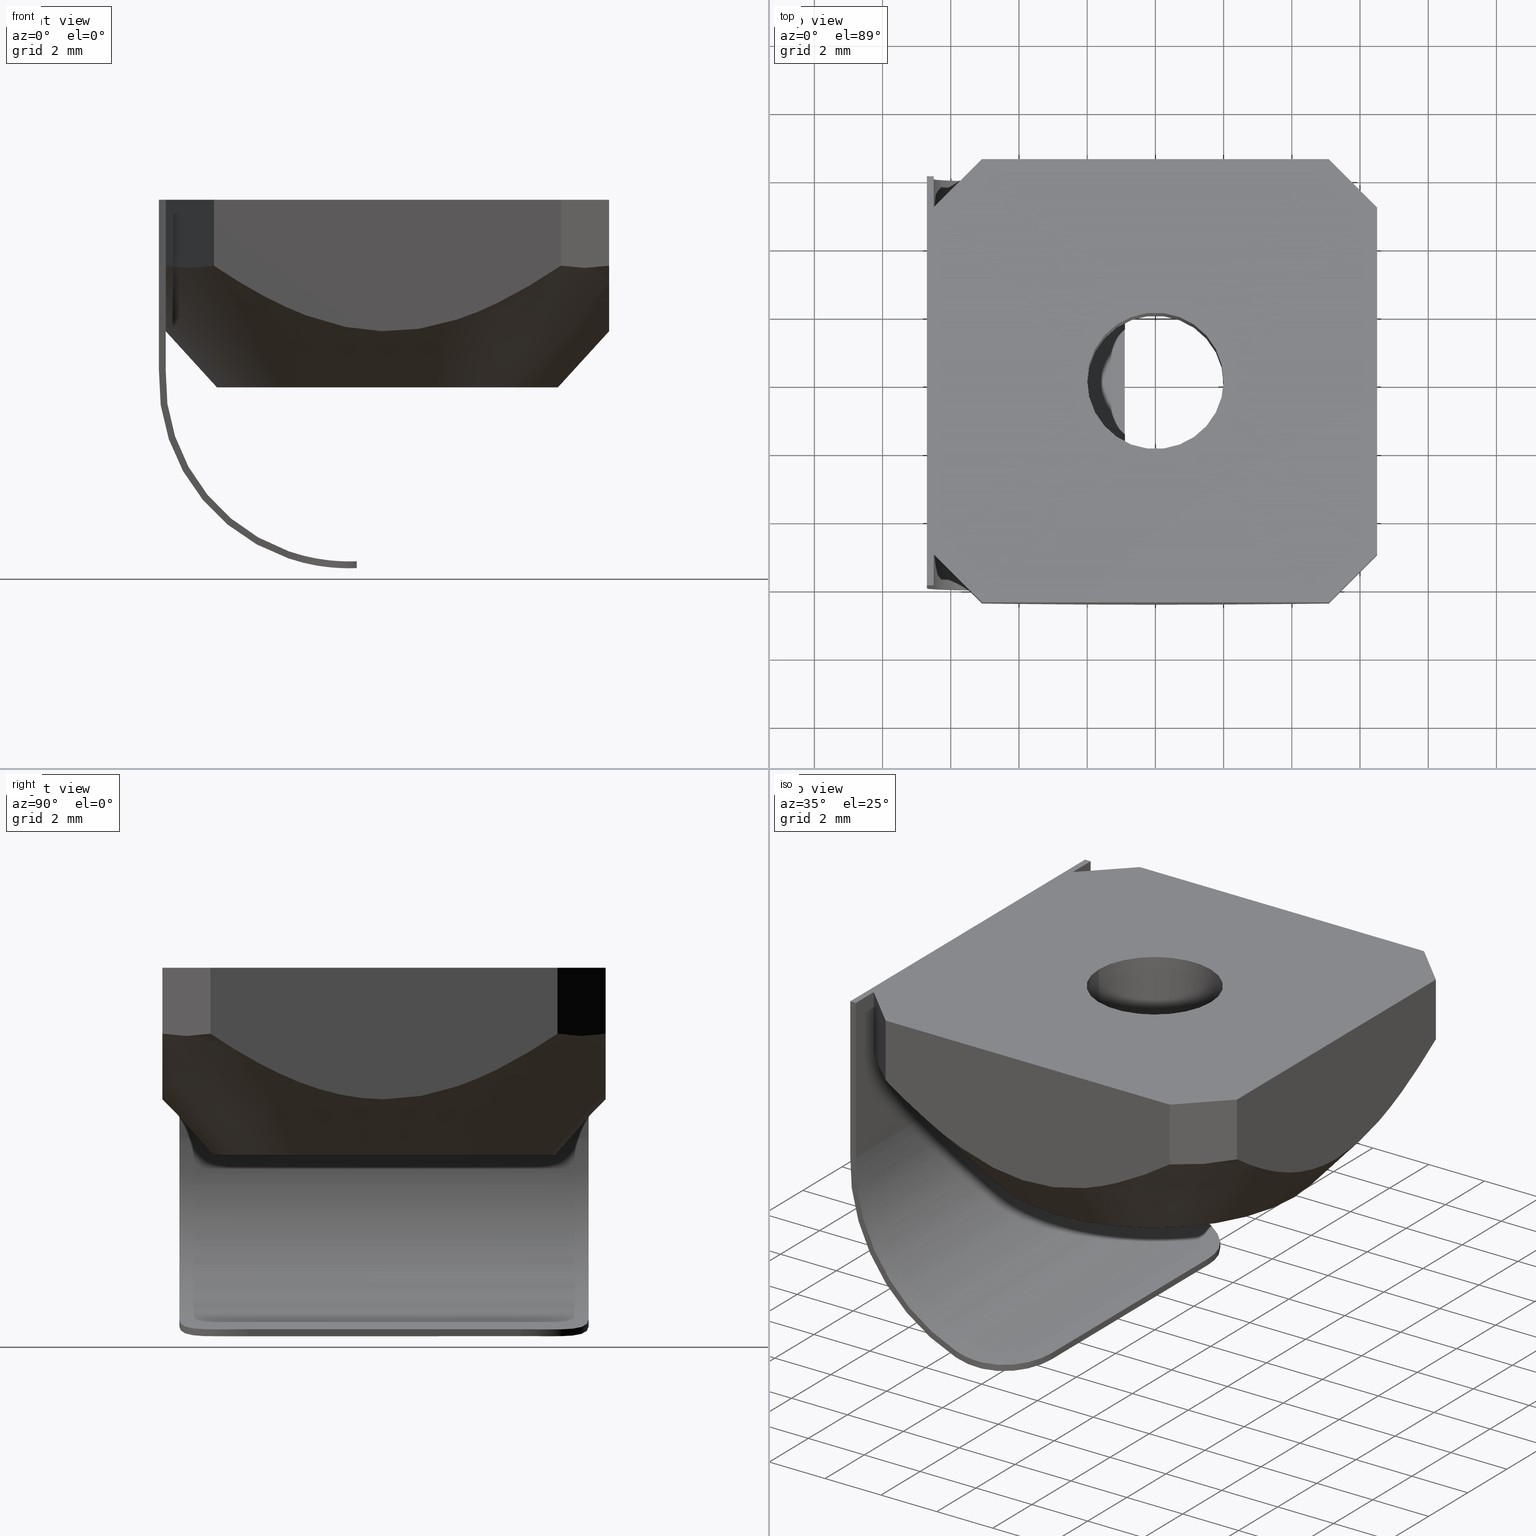
[diagram: canonical four-view strip — front | top / right | iso, engineering-drawing reading convention]
A machine part, canonical four-view strip (front | top / right | iso — engineering-drawing reading convention). The complete STEP part file that produces these views, byte-faithful:
ISO-10303-21;
HEADER;
FILE_DESCRIPTION (( 'STEP AP203' ),
    '1' );
FILE_NAME ('dado-M4-molla-3D.STEP',
    '2018-11-12T12:20:02',
    ( '' ),
    ( '' ),
    'SwSTEP 2.0',
    'SolidWorks 2018',
    '' );
FILE_SCHEMA (( 'CONFIG_CONTROL_DESIGN' ));
ENDSEC;

DATA;
#1 = FACE_OUTER_BOUND ( 'NONE', #186, .T. ) ;
#2 = DIRECTION ( 'NONE',  ( 0.0000000000000000000, 0.0000000000000000000, 1.000000000000000000 ) ) ;
#3 = ORIENTED_EDGE ( 'NONE', *, *, #300, .T. ) ;
#4 = VERTEX_POINT ( 'NONE', #517 ) ;
#5 = CARTESIAN_POINT ( 'NONE',  ( -2.258066242822474035, -6.500000000000002665, -3.449969955218917583 ) ) ;
#6 = AXIS2_PLACEMENT_3D ( 'NONE', #99, #86, #227 ) ;
#7 = EDGE_CURVE ( 'NONE', #53, #431, #615, .T. ) ;
#8 = CARTESIAN_POINT ( 'NONE',  ( 4.314592221427061780, -6.500000000000002665, -2.436609088893720632 ) ) ;
#9 = ORGANIZATION ( 'NON SPECIFICATO', 'NON SPECIFICATO', '' ) ;
#10 = CARTESIAN_POINT ( 'NONE',  ( -5.085786437677105809, -6.500000000012473578, -1.933334202242374511 ) ) ;
#11 = LINE ( 'NONE', #197, #290 ) ;
#12 = ORIENTED_EDGE ( 'NONE', *, *, #372, .F. ) ;
#13 = ORIENTED_EDGE ( 'NONE', *, *, #447, .F. ) ;
#14 = CARTESIAN_POINT ( 'NONE',  ( 6.500000000012471801, -5.085786437677110250, -1.933334202242371402 ) ) ;
#15 = PERSON_AND_ORGANIZATION_ROLE ( 'design_owner' ) ;
#16 = CARTESIAN_POINT ( 'NONE',  ( 6.500000000000000888, -0.9207822176421274207, -3.800343512463968842 ) ) ;
#17 = CARTESIAN_POINT ( 'NONE',  ( -2.899999999999091305, 6.000000000000000888, -10.51649273543432273 ) ) ;
#18 = VECTOR ( 'NONE', #570, 1000.000000000000000 ) ;
#19 = MECHANICAL_CONTEXT ( 'NONE', #24, 'mechanical' ) ;
#20 = VECTOR ( 'NONE', #470, 1000.000000000000114 ) ;
#21 = CARTESIAN_POINT ( 'NONE',  ( -0.8999999999990923039, -4.000000000000000888, -10.80000000000000426 ) ) ;
#22 = ORIENTED_EDGE ( 'NONE', *, *, #326, .T. ) ;
#23 = VERTEX_POINT ( 'NONE', #446 ) ;
#24 = APPLICATION_CONTEXT ( 'configuration controlled 3d designs of mechanical parts and assemblies' ) ;
#25 = EDGE_CURVE ( 'NONE', #303, #244, #812, .T. ) ;
#26 = CARTESIAN_POINT ( 'NONE',  ( -6.500000000000000888, 3.064398180133085755E-15, -3.855463141347039269 ) ) ;
#27 = CARTESIAN_POINT ( 'NONE',  ( -8.673617379884035472E-16, 1.734723475976807094E-15, -1.911934207335162839 ) ) ;
#28 = CIRCLE ( 'NONE', #840, 2.000000000000000000 ) ;
#29 = EDGE_LOOP ( 'NONE', ( #310, #774, #194, #423 ) ) ;
#30 = ORIENTED_EDGE ( 'NONE', *, *, #587, .T. ) ;
#31 = CARTESIAN_POINT ( 'NONE',  ( -6.500000000000002665, -4.314590746540053701, -2.436610204660846879 ) ) ;
#32 = ORIENTED_EDGE ( 'NONE', *, *, #618, .F. ) ;
#33 = CARTESIAN_POINT ( 'NONE',  ( -2.774018952904929947, -6.000000000000001776, -10.34925711923462188 ) ) ;
#34 = AXIS2_PLACEMENT_3D ( 'NONE', #338, #664, #535 ) ;
#35 = EDGE_CURVE ( 'NONE', #304, #105, #590, .T. ) ;
#36 = CARTESIAN_POINT ( 'NONE',  ( -6.499999999999999112, 5.085786437626910406, 0.0000000000000000000 ) ) ;
#37 = CARTESIAN_POINT ( 'NONE',  ( -2.395696888733046759, -5.939631197184258582, -10.45556331374028147 ) ) ;
#38 = CARTESIAN_POINT ( 'NONE',  ( -6.700000000000000178, 6.000000000000000888, 0.0000000000000000000 ) ) ;
#39 = PRODUCT_DEFINITION ( 'NON CONOSCIUTO', '', #106, #167 ) ;
#40 = COORDINATED_UNIVERSAL_TIME_OFFSET ( 1, 0, .AHEAD. ) ;
#41 = FACE_BOUND ( 'NONE', #597, .T. ) ;
#42 = CARTESIAN_POINT ( 'NONE',  ( -4.683470219463361509E-16, 1.335708759934739698E-15, -5.500000002871543892 ) ) ;
#43 = VERTEX_POINT ( 'NONE', #335 ) ;
#44 = ORIENTED_EDGE ( 'NONE', *, *, #802, .F. ) ;
#45 = CARTESIAN_POINT ( 'NONE',  ( 2.000000000000000000, 2.449293598294706414E-16, -5.500000000000000000 ) ) ;
#46 = PLANE ( 'NONE',  #790 ) ;
#47 = CARTESIAN_POINT ( 'NONE',  ( -1.157931664290501539, 5.017141040148644926, -10.60584818137802543 ) ) ;
#48 = DIRECTION ( 'NONE',  ( -0.0000000000000000000, -0.0000000000000000000, 1.000000000000000000 ) ) ;
#49 = AXIS2_PLACEMENT_3D ( 'NONE', #592, #602, #324 ) ;
#50 = CARTESIAN_POINT ( 'NONE',  ( -1.004973661053198519, 4.652855014654567967, -10.60372327308630780 ) ) ;
#51 = EDGE_CURVE ( 'NONE', #280, #882, #478, .T. ) ;
#52 = VECTOR ( 'NONE', #109, 1000.000000000000000 ) ;
#53 = VERTEX_POINT ( 'NONE', #530 ) ;
#54 = VERTEX_POINT ( 'NONE', #464 ) ;
#55 = CARTESIAN_POINT ( 'NONE',  ( -0.9208216822838610760, 6.500000000000002665, -3.800336665431251593 ) ) ;
#56 = ORIENTED_EDGE ( 'NONE', *, *, #361, .T. ) ;
#57 = PRODUCT ( 'dado-M4-molla-3D', 'dado-M4-molla-3D', '', ( #19 ) ) ;
#58 = CARTESIAN_POINT ( 'NONE',  ( -2.648518024987377650, 5.988204754610038094, -10.38776501183287060 ) ) ;
#59 = DIRECTION ( 'NONE',  ( 0.0000000000000000000, 0.0000000000000000000, 1.000000000000000000 ) ) ;
#60 = ADVANCED_FACE ( 'NONE', ( #319 ), #526, .T. ) ;
#61 = CARTESIAN_POINT ( 'NONE',  ( -1.915782846449659571, 5.746021781213180191, -10.54844210040768182 ) ) ;
#62 = DATE_AND_TIME ( #593, #352 ) ;
#63 = CARTESIAN_POINT ( 'NONE',  ( -6.500000000000001776, 3.107041528813947462, -3.094886144136435480 ) ) ;
#64 = LINE ( 'NONE', #607, #199 ) ;
#65 = DIRECTION ( 'NONE',  ( 1.000000000000000000, 0.0000000000000000000, -0.0000000000000000000 ) ) ;
#66 = LINE ( 'NONE', #422, #421 ) ;
#67 = VERTEX_POINT ( 'NONE', #732 ) ;
#68 = ADVANCED_FACE ( 'NONE', ( #137 ), #329, .T. ) ;
#69 = ORIENTED_EDGE ( 'NONE', *, *, #96, .F. ) ;
#70 = DIRECTION ( 'NONE',  ( -0.7071067811865474617, 0.7071067811865474617, 0.0000000000000000000 ) ) ;
#71 = CARTESIAN_POINT ( 'NONE',  ( 3.107124692420668577, -6.500000000000003553, -3.094845548749633579 ) ) ;
#72 = B_SPLINE_CURVE_WITH_KNOTS ( 'NONE', 3,
 ( #90, #697, #164, #486, #769, #218, #692, #16, #843, #498 ),
 .UNSPECIFIED., .F., .F.,
 ( 4, 2, 2, 2, 4 ),
 ( 8.321661056377371081E-14, 0.001375070618102954174, 0.002750141236122692796, 0.004125211854142431418, 0.005500282472162170040 ),
 .UNSPECIFIED. ) ;
#73 = CARTESIAN_POINT ( 'NONE',  ( -0.9131977939612625494, -4.264395205391290133, -10.80059090991903226 ) ) ;
#74 = EDGE_CURVE ( 'NONE', #202, #762, #819, .T. ) ;
#75 = CARTESIAN_POINT ( 'NONE',  ( -5.085786437677105809, -6.500000000012473578, -1.933334202242374511 ) ) ;
#76 = CARTESIAN_POINT ( 'NONE',  ( -2.647124743138815184, -5.988116661962671117, -10.59610124318355595 ) ) ;
#77 = DIRECTION ( 'NONE',  ( -0.0000000000000000000, -1.000000000000000000, -0.0000000000000000000 ) ) ;
#78 = PERSON_AND_ORGANIZATION ( #752, #9 ) ;
#79 = ADVANCED_FACE ( 'NONE', ( #1 ), #620, .T. ) ;
#80 = VECTOR ( 'NONE', #564, 1000.000000000000000 ) ;
#81 = ORIENTED_EDGE ( 'NONE', *, *, #637, .T. ) ;
#82 = CARTESIAN_POINT ( 'NONE',  ( -8.673617379884035472E-16, 1.734723475976807094E-15, -1.911934207335162839 ) ) ;
#83 = VERTEX_POINT ( 'NONE', #389 ) ;
#84 = DIRECTION ( 'NONE',  ( -0.0000000000000000000, -1.000000000000000000, -0.0000000000000000000 ) ) ;
#85 = ADVANCED_FACE ( 'NONE', ( #200 ), #151, .F. ) ;
#86 = DIRECTION ( 'NONE',  ( 0.0000000000000000000, 0.0000000000000000000, -1.000000000000000000 ) ) ;
#87 = CARTESIAN_POINT ( 'NONE',  ( -1.316325931495049950, -5.228568794416730725, -10.80216733933092854 ) ) ;
#88 = EDGE_CURVE ( 'NONE', #795, #431, #632, .T. ) ;
#89 = CALENDAR_DATE ( 2018, 12, 11 ) ;
#90 = CARTESIAN_POINT ( 'NONE',  ( 6.500000000012471801, -5.085786437677110250, -1.933334202242371402 ) ) ;
#91 = CYLINDRICAL_SURFACE ( 'NONE', #851, 2.000000000000000000 ) ;
#92 = VECTOR ( 'NONE', #766, 1000.000000000000000 ) ;
#93 = AXIS2_PLACEMENT_3D ( 'NONE', #705, #645, #708 ) ;
#94 = CC_DESIGN_DATE_AND_TIME_ASSIGNMENT ( #251, #699, ( #39 ) ) ;
#95 = ORIENTED_EDGE ( 'NONE', *, *, #852, .T. ) ;
#96 = EDGE_CURVE ( 'NONE', #882, #53, #595, .T. ) ;
#97 = ORIENTED_EDGE ( 'NONE', *, *, #662, .T. ) ;
#98 = PERSON_AND_ORGANIZATION_ROLE ( 'creator' ) ;
#99 = CARTESIAN_POINT ( 'NONE',  ( 0.0000000000000000000, 0.0000000000000000000, 0.0000000000000000000 ) ) ;
#100 = DIRECTION ( 'NONE',  ( -0.0000000000000000000, -1.000000000000000000, -0.0000000000000000000 ) ) ;
#101 = APPLICATION_CONTEXT ( 'configuration controlled 3d designs of mechanical parts and assemblies' ) ;
#102 = VECTOR ( 'NONE', #248, 1000.000000000000000 ) ;
#103 = CARTESIAN_POINT ( 'NONE',  ( -6.028595512367949993, 5.557190925258959524, -2.021894485311552803 ) ) ;
#104 = ORIENTED_EDGE ( 'NONE', *, *, #404, .F. ) ;
#105 = VERTEX_POINT ( 'NONE', #609 ) ;
#106 = PRODUCT_DEFINITION_FORMATION_WITH_SPECIFIED_SOURCE ( 'TUTTO', '', #57, .NOT_KNOWN. ) ;
#107 = EDGE_CURVE ( 'NONE', #674, #301, #873, .T. ) ;
#108 = DIRECTION ( 'NONE',  ( -1.112060755793410790E-16, 1.112060755793410790E-16, 1.000000000000000000 ) ) ;
#109 = DIRECTION ( 'NONE',  ( -0.0000000000000000000, -1.000000000000000000, -0.0000000000000000000 ) ) ;
#110 = AXIS2_PLACEMENT_3D ( 'NONE', #612, #556, #348 ) ;
#111 = CARTESIAN_POINT ( 'NONE',  ( 6.500000000000001776, 3.516244482516675429, -2.888242014042283312 ) ) ;
#112 = LINE ( 'NONE', #176, #836 ) ;
#113 = CARTESIAN_POINT ( 'NONE',  ( 6.500000000012471801, 5.085786437614437716, -1.933334202284715309 ) ) ;
#114 = EDGE_LOOP ( 'NONE', ( #513, #193, #546, #744, #860, #567, #659, #532, #232, #13, #608, #95 ) ) ;
#115 = ORIENTED_EDGE ( 'NONE', *, *, #74, .T. ) ;
#116 = ORIENTED_EDGE ( 'NONE', *, *, #284, .T. ) ;
#117 = CARTESIAN_POINT ( 'NONE',  ( -1.106494188736913298, -4.894898602730262560, -10.60513923880284715 ) ) ;
#118 = DIRECTION ( 'NONE',  ( 0.0000000000000000000, 1.000000000000000000, 0.0000000000000000000 ) ) ;
#119 = CARTESIAN_POINT ( 'NONE',  ( -0.9650097329229258003, -4.522615477119103389, -10.60246055605721516 ) ) ;
#120 = CC_DESIGN_DATE_AND_TIME_ASSIGNMENT ( #418, #569, ( #854 ) ) ;
#121 = CARTESIAN_POINT ( 'NONE',  ( -2.647896067399243769, -5.988198786915118532, -10.38797620515204656 ) ) ;
#122 = EDGE_CURVE ( 'NONE', #105, #375, #343, .T. ) ;
#123 = DIRECTION ( 'NONE',  ( 0.0000000000000000000, 0.0000000000000000000, -1.000000000000000000 ) ) ;
#124 = ORIENTED_EDGE ( 'NONE', *, *, #780, .T. ) ;
#125 = DIRECTION ( 'NONE',  ( -0.7071067811865475727, 0.7071067811865475727, 0.0000000000000000000 ) ) ;
#126 = ORIENTED_EDGE ( 'NONE', *, *, #601, .T. ) ;
#127 = ORIENTED_EDGE ( 'NONE', *, *, #497, .T. ) ;
#128 = CARTESIAN_POINT ( 'NONE',  ( -2.899999999999092193, 4.000000000000000888, -8.605752313873145098 ) ) ;
#129 = CARTESIAN_POINT ( 'NONE',  ( -1.310095481112453886, 5.241528610286935397, -10.60524065647586056 ) ) ;
#130 = CARTESIAN_POINT ( 'NONE',  ( -6.700000000000000178, -6.000000000000000888, 0.0000000000000000000 ) ) ;
#131 = CARTESIAN_POINT ( 'NONE',  ( -0.4653350873336496996, 6.500000000000003553, -3.855445476124739201 ) ) ;
#132 = CARTESIAN_POINT ( 'NONE',  ( -6.500000000000000888, 2.258115939526438520, -3.449951148689369695 ) ) ;
#133 = CALENDAR_DATE ( 2018, 12, 11 ) ;
#134 = CARTESIAN_POINT ( 'NONE',  ( 1.815581894366168791, 6.500000000000003553, -3.598278178908117297 ) ) ;
#135 = CIRCLE ( 'NONE', #359, 5.574159195229042574 ) ;
#136 = ADVANCED_FACE ( 'NONE', ( #792 ), #405, .T. ) ;
#137 = FACE_OUTER_BOUND ( 'NONE', #685, .T. ) ;
#138 = DIRECTION ( 'NONE',  ( 1.000000000000000000, 0.0000000000000000000, -0.0000000000000000000 ) ) ;
#139 = ORIENTED_EDGE ( 'NONE', *, *, #680, .F. ) ;
#140 = DIRECTION ( 'NONE',  ( -0.7071067811865474617, -0.7071067811865474617, 0.0000000000000000000 ) ) ;
#141 = ADVANCED_BREP_SHAPE_REPRESENTATION ( 'dado-M4-molla-3D', ( #872, #711 ), #666 ) ;
#142 = CARTESIAN_POINT ( 'NONE',  ( -0.8999999999990930810, 0.0000000000000000000, -10.80000000000000071 ) ) ;
#143 = EDGE_CURVE ( 'NONE', #23, #202, #800, .T. ) ;
#144 = DIRECTION ( 'NONE',  ( -1.000000000000000000, 0.0000000000000000000, 0.0000000000000000000 ) ) ;
#145 = DIRECTION ( 'NONE',  ( 0.0000000000000000000, -0.0000000000000000000, -1.000000000000000000 ) ) ;
#146 = DIRECTION ( 'NONE',  ( 0.7071067811865475727, -0.7071067811865475727, 0.0000000000000000000 ) ) ;
#147 = ADVANCED_FACE ( 'NONE', ( #672 ), #825, .T. ) ;
#148 = CARTESIAN_POINT ( 'NONE',  ( 6.028595479244057032, -5.557190958382852486, -2.021894486498649446 ) ) ;
#149 = LINE ( 'NONE', #759, #657 ) ;
#150 = CARTESIAN_POINT ( 'NONE',  ( -6.500000000000000888, -5.085786437626906853, 0.0000000000000000000 ) ) ;
#151 = CYLINDRICAL_SURFACE ( 'NONE', #458, 2.000000000000000000 ) ;
#152 = ORIENTED_EDGE ( 'NONE', *, *, #222, .F. ) ;
#153 = ORIENTED_EDGE ( 'NONE', *, *, #542, .F. ) ;
#154 = CARTESIAN_POINT ( 'NONE',  ( -6.500000000000000888, -6.000000000000000888, -5.000000000000007105 ) ) ;
#155 = ADVANCED_FACE ( 'NONE', ( #364 ), #544, .T. ) ;
#156 = CARTESIAN_POINT ( 'NONE',  ( -4.314559355035862076, -6.500000000000002665, -2.436630007698925571 ) ) ;
#157 = CARTESIAN_POINT ( 'NONE',  ( -0.8999999999990927479, 4.000000000000000888, -10.60000000000000142 ) ) ;
#158 = EDGE_CURVE ( 'NONE', #301, #83, #736, .T. ) ;
#159 = CARTESIAN_POINT ( 'NONE',  ( 1.815743295979880711, -6.500000000000003553, -3.598228176136369694 ) ) ;
#160 = CARTESIAN_POINT ( 'NONE',  ( -6.500000000000000888, 3.064398180133085755E-15, -3.855463141347039269 ) ) ;
#161 = VECTOR ( 'NONE', #118, 1000.000000000000000 ) ;
#162 = CARTESIAN_POINT ( 'NONE',  ( -1.004075414358421181, -4.650346998061204218, -10.80356997183101342 ) ) ;
#163 = VECTOR ( 'NONE', #636, 1000.000000000000000 ) ;
#164 = CARTESIAN_POINT ( 'NONE',  ( 6.500000000000000888, -4.314590728831698918, -2.436610215365368148 ) ) ;
#165 = ORIENTED_EDGE ( 'NONE', *, *, #480, .F. ) ;
#166 = ORIENTED_EDGE ( 'NONE', *, *, #637, .F. ) ;
#167 = DESIGN_CONTEXT ( 'detailed design', #101, 'design' ) ;
#168 = CC_DESIGN_SECURITY_CLASSIFICATION ( #854, ( #106 ) ) ;
#169 = LINE ( 'NONE', #445, #191 ) ;
#170 = LINE ( 'NONE', #296, #92 ) ;
#171 = AXIS2_PLACEMENT_3D ( 'NONE', #796, #450, #256 ) ;
#172 = ORIENTED_EDGE ( 'NONE', *, *, #427, .T. ) ;
#173 = EDGE_CURVE ( 'NONE', #375, #23, #331, .T. ) ;
#174 = ORIENTED_EDGE ( 'NONE', *, *, #618, .T. ) ;
#175 = CARTESIAN_POINT ( 'NONE',  ( -6.500000000000000888, 0.0000000000000000000, 0.0000000000000000000 ) ) ;
#176 = CARTESIAN_POINT ( 'NONE',  ( -6.700000000000000178, 0.0000000000000000000, -5.000000000000000000 ) ) ;
#177 = APPROVAL_PERSON_ORGANIZATION ( #709, #333, #226 ) ;
#178 = CARTESIAN_POINT ( 'NONE',  ( -2.899999999999090861, -6.000000000000000888, -10.30533168883703432 ) ) ;
#179 = ORIENTED_EDGE ( 'NONE', *, *, #830, .F. ) ;
#180 = ORIENTED_EDGE ( 'NONE', *, *, #852, .F. ) ;
#181 = DIRECTION ( 'NONE',  ( 1.000000000000000000, -0.0000000000000000000, 0.0000000000000000000 ) ) ;
#182 = EDGE_CURVE ( 'NONE', #683, #827, #868, .T. ) ;
#183 = DIRECTION ( 'NONE',  ( -0.0000000000000000000, -0.0000000000000000000, -1.000000000000000000 ) ) ;
#184 = VECTOR ( 'NONE', #656, 1000.000000000000000 ) ;
#185 = ORIENTED_EDGE ( 'NONE', *, *, #755, .T. ) ;
#186 = EDGE_LOOP ( 'NONE', ( #165, #124, #291, #116, #501, #828 ) ) ;
#187 = ORIENTED_EDGE ( 'NONE', *, *, #143, .T. ) ;
#188 = DIRECTION ( 'NONE',  ( 0.7071067811865473507, 0.7071067811865477948, 0.0000000000000000000 ) ) ;
#189 = CARTESIAN_POINT ( 'NONE',  ( -5.085786437677106697, 6.500000000012475354, -1.933334202242377842 ) ) ;
#190 = EDGE_CURVE ( 'NONE', #827, #453, #429, .T. ) ;
#191 = VECTOR ( 'NONE', #440, 1000.000000000000000 ) ;
#192 = CARTESIAN_POINT ( 'NONE',  ( 5.085786437677108474, 6.500000000012474466, -1.933334202242375177 ) ) ;
#193 = ORIENTED_EDGE ( 'NONE', *, *, #416, .T. ) ;
#194 = ORIENTED_EDGE ( 'NONE', *, *, #835, .T. ) ;
#195 = DIRECTION ( 'NONE',  ( 0.0000000000000000000, 0.0000000000000000000, -1.000000000000000000 ) ) ;
#196 = CARTESIAN_POINT ( 'NONE',  ( -5.085786437626904188, 6.500000000000005329, 0.0000000000000000000 ) ) ;
#197 = CARTESIAN_POINT ( 'NONE',  ( -2.000000000000000000, 0.0000000000000000000, 0.0000000000000000000 ) ) ;
#198 = CARTESIAN_POINT ( 'NONE',  ( 6.500000000000000888, 5.085786437626907741, 0.0000000000000000000 ) ) ;
#199 = VECTOR ( 'NONE', #813, 1000.000000000000000 ) ;
#200 = FACE_OUTER_BOUND ( 'NONE', #849, .T. ) ;
#201 = CARTESIAN_POINT ( 'NONE',  ( 7.734518000000000462E-16, 5.551114999999999878E-16, -5.500000000000000000 ) ) ;
#202 = VERTEX_POINT ( 'NONE', #339 ) ;
#203 = ORIENTED_EDGE ( 'NONE', *, *, #647, .F. ) ;
#204 = B_SPLINE_CURVE_WITH_KNOTS ( 'NONE', 3,
 ( #807, #887, #746, #395, #132, #63, #460, #462, #457, #610 ),
 .UNSPECIFIED., .F., .F.,
 ( 4, 2, 2, 2, 4 ),
 ( 0.005500282510485713164, 0.006875464031092158763, 0.008250645551698604363, 0.009625827072305050830, 0.01100100859291149556 ),
 .UNSPECIFIED. ) ;
#205 = EDGE_CURVE ( 'NONE', #303, #674, #268, .T. ) ;
#206 = CARTESIAN_POINT ( 'NONE',  ( 4.703623369059488191, -6.500000000000002665, -2.191522821825990341 ) ) ;
#207 = APPROVAL_DATE_TIME ( #410, #571 ) ;
#208 = CARTESIAN_POINT ( 'NONE',  ( 3.516309706215214437, -6.500000000000002665, -2.888207160138610785 ) ) ;
#209 = LINE ( 'NONE', #295, #18 ) ;
#210 = EDGE_LOOP ( 'NONE', ( #213, #578, #695, #430 ) ) ;
#211 = ORIENTED_EDGE ( 'NONE', *, *, #205, .F. ) ;
#212 = CARTESIAN_POINT ( 'NONE',  ( -1.106187446334464752, -4.894269408310023550, -10.80495283754048685 ) ) ;
#213 = ORIENTED_EDGE ( 'NONE', *, *, #361, .F. ) ;
#214 = CARTESIAN_POINT ( 'NONE',  ( -2.647759356934837882, 5.988122508622047313, -10.59589414863119394 ) ) ;
#215 = ADVANCED_FACE ( 'NONE', ( #771 ), #512, .T. ) ;
#216 = CARTESIAN_POINT ( 'NONE',  ( 5.085786437677106697, -6.500000000012474466, -1.933334202242371402 ) ) ;
#217 = CARTESIAN_POINT ( 'NONE',  ( -8.272713925181710337, 2.747838738850358616E-15, -1.911934207335163727 ) ) ;
#218 = CARTESIAN_POINT ( 'NONE',  ( 6.500000000000000000, -2.258188589613314257, -3.449924592231258913 ) ) ;
#219 = LOCAL_TIME ( 13, 20, 2.000000000000000000, #40 ) ;
#220 = LINE ( 'NONE', #175, #52 ) ;
#221 = APPROVAL_ROLE ( '' ) ;
#222 = EDGE_CURVE ( 'NONE', #259, #304, #72, .T. ) ;
#223 = LINE ( 'NONE', #217, #373 ) ;
#224 = CARTESIAN_POINT ( 'NONE',  ( -2.000000000000000000, 0.0000000000000000000, 0.0000000000000000000 ) ) ;
#225 = ORIENTED_EDGE ( 'NONE', *, *, #776, .F. ) ;
#226 = APPROVAL_ROLE ( '' ) ;
#227 = DIRECTION ( 'NONE',  ( -1.000000000000000000, 0.0000000000000000000, 0.0000000000000000000 ) ) ;
#228 = CARTESIAN_POINT ( 'NONE',  ( -6.500000000000000888, -3.107104350552365002, -3.094856037944705207 ) ) ;
#229 = FACE_OUTER_BOUND ( 'NONE', #869, .T. ) ;
#230 = ORIENTED_EDGE ( 'NONE', *, *, #182, .T. ) ;
#231 = EDGE_CURVE ( 'NONE', #683, #534, #781, .T. ) ;
#232 = ORIENTED_EDGE ( 'NONE', *, *, #867, .T. ) ;
#233 = CARTESIAN_POINT ( 'NONE',  ( -1.309492480874152376, 5.240719531287519217, -10.80506312383736933 ) ) ;
#234 = ORIENTED_EDGE ( 'NONE', *, *, #867, .F. ) ;
#235 = CARTESIAN_POINT ( 'NONE',  ( -6.500000000000001776, -2.258188599350608339, -3.449924588806682735 ) ) ;
#236 = CC_DESIGN_PERSON_AND_ORGANIZATION_ASSIGNMENT ( #768, #15, ( #57 ) ) ;
#237 = CARTESIAN_POINT ( 'NONE',  ( 6.500000000000000000, 4.703607954553438830, -2.191533235836048643 ) ) ;
#238 = PLANE ( 'NONE',  #507 ) ;
#239 = APPROVAL_PERSON_ORGANIZATION ( #78, #571, #848 ) ;
#240 = CIRCLE ( 'NONE', #785, 5.374336801206437642 ) ;
#241 = DIRECTION ( 'NONE',  ( -1.112060755793410790E-16, 1.112060755793410790E-16, 1.000000000000000000 ) ) ;
#242 = ORIENTED_EDGE ( 'NONE', *, *, #601, .F. ) ;
#243 = CARTESIAN_POINT ( 'NONE',  ( -0.8999999999990929700, -4.000000000000000888, -10.60000000000000142 ) ) ;
#244 = VERTEX_POINT ( 'NONE', #494 ) ;
#245 = DIRECTION ( 'NONE',  ( 0.0000000000000000000, -0.0000000000000000000, 1.000000000000000000 ) ) ;
#246 = DIRECTION ( 'NONE',  ( 1.000000000000000000, 0.0000000000000000000, 0.0000000000000000000 ) ) ;
#247 = AXIS2_PLACEMENT_3D ( 'NONE', #678, #270, #59 ) ;
#248 = DIRECTION ( 'NONE',  ( 0.7071067811865473507, -0.7071067811865477948, 0.0000000000000000000 ) ) ;
#249 = EDGE_CURVE ( 'NONE', #280, #322, #651, .T. ) ;
#250 = CARTESIAN_POINT ( 'NONE',  ( 5.000000003148240779, 1.335708759934739698E-15, -5.500000002871543003 ) ) ;
#251 = DATE_AND_TIME ( #133, #649 ) ;
#252 = CARTESIAN_POINT ( 'NONE',  ( -2.031281744647319254, 5.806170918667604042, -10.53036751964402384 ) ) ;
#253 = VECTOR ( 'NONE', #77, 1000.000000000000000 ) ;
#254 = ORIENTED_EDGE ( 'NONE', *, *, #88, .F. ) ;
#255 = B_SPLINE_CURVE_WITH_KNOTS ( 'NONE', 3,
 ( #417, #628, #214, #287, #370, #782, #787, #715, #850, #233, #638, #579, #855, #646, #853, #778 ),
 .UNSPECIFIED., .F., .F.,
 ( 4, 2, 2, 2, 2, 2, 2, 4 ),
 ( 1.734723475976807094E-18, 0.0003943740746614547688, 0.0007887481493229078029, 0.001183122223984360783, 0.001577496298645813871, 0.002366244447968719831, 0.002760618522630172052, 0.003154992597291624706 ),
 .UNSPECIFIED. ) ;
#256 = DIRECTION ( 'NONE',  ( 1.000000000000000000, 0.0000000000000000000, -0.0000000000000000000 ) ) ;
#257 = ORIENTED_EDGE ( 'NONE', *, *, #25, .F. ) ;
#258 = CARTESIAN_POINT ( 'NONE',  ( 2.258066242822476255, 6.500000000000003553, -3.449969955218920692 ) ) ;
#259 = VERTEX_POINT ( 'NONE', #14 ) ;
#260 = PLANE ( 'NONE',  #875 ) ;
#261 = CARTESIAN_POINT ( 'NONE',  ( -1.695744159845404386, 5.602199531040851888, -10.57630516161015422 ) ) ;
#262 = DIRECTION ( 'NONE',  ( 0.0000000000000000000, -0.0000000000000000000, 1.000000000000000000 ) ) ;
#263 = DIRECTION ( 'NONE',  ( -1.000000000000000000, 0.0000000000000000000, 0.0000000000000000000 ) ) ;
#264 = APPROVAL_DATE_TIME ( #62, #333 ) ;
#265 = CARTESIAN_POINT ( 'NONE',  ( -6.499999993186322378, -5.085786460416152899, -1.933334192774046389 ) ) ;
#266 = FACE_OUTER_BOUND ( 'NONE', #635, .T. ) ;
#267 = CARTESIAN_POINT ( 'NONE',  ( -1.591409444406668650, 5.518185817068715693, -10.58598417421093529 ) ) ;
#268 = LINE ( 'NONE', #351, #521 ) ;
#269 = VERTEX_POINT ( 'NONE', #21 ) ;
#270 = DIRECTION ( 'NONE',  ( 0.0000000000000000000, 1.000000000000000000, 0.0000000000000000000 ) ) ;
#271 = AXIS2_PLACEMENT_3D ( 'NONE', #591, #48, #520 ) ;
#272 = EDGE_CURVE ( 'NONE', #344, #366, #858, .T. ) ;
#273 = CARTESIAN_POINT ( 'NONE',  ( 5.085786437626906853, 6.500000000000003553, 0.0000000000000000000 ) ) ;
#274 = CARTESIAN_POINT ( 'NONE',  ( -5.557190953238038134, -6.028595484388869608, -2.021894485532125696 ) ) ;
#275 =( NAMED_UNIT ( * ) PLANE_ANGLE_UNIT ( ) SI_UNIT ( $, .RADIAN. ) );
#276 = CARTESIAN_POINT ( 'NONE',  ( -1.815581894366166571, -6.500000000000001776, -3.598278178908113745 ) ) ;
#277 = LINE ( 'NONE', #832, #451 ) ;
#278 = ORIENTED_EDGE ( 'NONE', *, *, #459, .F. ) ;
#279 = DIRECTION ( 'NONE',  ( -1.000000000000000000, -0.0000000000000000000, 0.0000000000000000000 ) ) ;
#280 = VERTEX_POINT ( 'NONE', #294 ) ;
#281 = ORIENTED_EDGE ( 'NONE', *, *, #647, .T. ) ;
#282 = ADVANCED_FACE ( 'NONE', ( #490 ), #309, .F. ) ;
#283 = CARTESIAN_POINT ( 'NONE',  ( -2.394469476613536596, -5.939327885384850347, -10.66116901662332594 ) ) ;
#284 = EDGE_CURVE ( 'NONE', #4, #269, #170, .T. ) ;
#285 = PRODUCT_RELATED_PRODUCT_CATEGORY ( 'detail', '', ( #57 ) ) ;
#286 = CARTESIAN_POINT ( 'NONE',  ( 0.0000000000000000000, 0.0000000000000000000, 0.0000000000000000000 ) ) ;
#287 = CARTESIAN_POINT ( 'NONE',  ( -2.397340168322061871, 5.939997305390271265, -10.66047276270431965 ) ) ;
#288 = CARTESIAN_POINT ( 'NONE',  ( -0.8999999999990930810, 4.000000000000000888, -10.80000000000000071 ) ) ;
#289 = CARTESIAN_POINT ( 'NONE',  ( 0.0000000000000000000, 0.0000000000000000000, 0.0000000000000000000 ) ) ;
#290 = VECTOR ( 'NONE', #195, 1000.000000000000000 ) ;
#291 = ORIENTED_EDGE ( 'NONE', *, *, #372, .T. ) ;
#292 = ORIENTED_EDGE ( 'NONE', *, *, #723, .F. ) ;
#293 = EDGE_LOOP ( 'NONE', ( #644, #557 ) ) ;
#294 = CARTESIAN_POINT ( 'NONE',  ( -2.899999999999091749, 6.000000000000000888, -10.30533168883703432 ) ) ;
#295 = CARTESIAN_POINT ( 'NONE',  ( -0.8999999999990920818, -4.000000000000000888, -8.605752313873143322 ) ) ;
#296 = CARTESIAN_POINT ( 'NONE',  ( -0.8999999999990927479, 0.0000000000000000000, -10.80000000000000426 ) ) ;
#297 = AXIS2_PLACEMENT_3D ( 'NONE', #289, #633, #767 ) ;
#298 = LINE ( 'NONE', #485, #824 ) ;
#299 = APPROVAL_STATUS ( 'not_yet_approved' ) ;
#300 = EDGE_CURVE ( 'NONE', #374, #453, #66, .T. ) ;
#301 = VERTEX_POINT ( 'NONE', #10 ) ;
#302 = CARTESIAN_POINT ( 'NONE',  ( -5.085786437626905965, -6.500000000000002665, 0.0000000000000000000 ) ) ;
#303 = VERTEX_POINT ( 'NONE', #357 ) ;
#304 = VERTEX_POINT ( 'NONE', #488 ) ;
#305 = DIRECTION ( 'NONE',  ( -0.0000000000000000000, -1.000000000000000000, 0.0000000000000000000 ) ) ;
#306 = PERSON_AND_ORGANIZATION ( #752, #9 ) ;
#307 = CARTESIAN_POINT ( 'NONE',  ( -1.130613297613433987, 6.000000000000000888, -5.230613297613471602 ) ) ;
#308 = FACE_OUTER_BOUND ( 'NONE', #703, .T. ) ;
#309 = CYLINDRICAL_SURFACE ( 'NONE', #297, 2.000000000000000000 ) ;
#310 = ORIENTED_EDGE ( 'NONE', *, *, #173, .F. ) ;
#311 = DIRECTION ( 'NONE',  ( 0.0000000000000000000, -0.0000000000000000000, -1.000000000000000000 ) ) ;
#312 = EDGE_LOOP ( 'NONE', ( #104, #166, #714, #413, #69, #433 ) ) ;
#313 = PLANE ( 'NONE',  #358 ) ;
#314 = CARTESIAN_POINT ( 'NONE',  ( -1.402925667026931444, -5.332688051299565579, -10.59886806062529452 ) ) ;
#315 = EDGE_CURVE ( 'NONE', #493, #67, #585, .T. ) ;
#316 = CARTESIAN_POINT ( 'NONE',  ( -6.500000000000000888, 0.0000000000000000000, -4.999999999999999112 ) ) ;
#317 = B_SPLINE_CURVE_WITH_KNOTS ( 'NONE', 3,
 ( #216, #765, #148, #834 ),
 .UNSPECIFIED., .F., .F.,
 ( 4, 4 ),
 ( 6.051050471646755322E-14, 0.002000000000007151873 ),
 .UNSPECIFIED. ) ;
#318 = PLANE ( 'NONE',  #171 ) ;
#319 = FACE_OUTER_BOUND ( 'NONE', #444, .T. ) ;
#320 = CARTESIAN_POINT ( 'NONE',  ( 6.500000000000000888, 1.815600839890428864, -3.598271834400735170 ) ) ;
#321 = ORIENTED_EDGE ( 'NONE', *, *, #822, .F. ) ;
#322 = VERTEX_POINT ( 'NONE', #17 ) ;
#323 = CARTESIAN_POINT ( 'NONE',  ( -6.500000000000000888, 0.0000000000000000000, -4.999999999999999112 ) ) ;
#324 = DIRECTION ( 'NONE',  ( 0.0000000000000000000, 0.0000000000000000000, 1.000000000000000000 ) ) ;
#325 = CARTESIAN_POINT ( 'NONE',  ( -6.700000000000000178, -6.000000000000000888, -4.999999999999985789 ) ) ;
#326 = EDGE_CURVE ( 'NONE', #67, #838, #223, .T. ) ;
#327 = CARTESIAN_POINT ( 'NONE',  ( 5.085786437626906853, 6.500000000000003553, 0.0000000000000000000 ) ) ;
#328 = PERSON_AND_ORGANIZATION ( #752, #9 ) ;
#329 = PLANE ( 'NONE',  #34 ) ;
#330 = FACE_OUTER_BOUND ( 'NONE', #293, .T. ) ;
#331 = LINE ( 'NONE', #833, #20 ) ;
#332 = DIRECTION ( 'NONE',  ( 0.0000000000000000000, 0.0000000000000000000, 1.000000000000000000 ) ) ;
#333 = APPROVAL ( #368, 'NON SPECIFICATO' ) ;
#334 = ORIENTED_EDGE ( 'NONE', *, *, #723, .T. ) ;
#335 = CARTESIAN_POINT ( 'NONE',  ( -6.500000000000000888, 6.000000000000000888, -5.000000000000007105 ) ) ;
#336 = ORIENTED_EDGE ( 'NONE', *, *, #107, .T. ) ;
#337 = PLANE ( 'NONE',  #385 ) ;
#338 = CARTESIAN_POINT ( 'NONE',  ( -5.221683483938816650, 6.000000000000000888, -6.411504627746289486 ) ) ;
#339 = CARTESIAN_POINT ( 'NONE',  ( 5.085786437677108474, 6.500000000012474466, -1.933334202242375177 ) ) ;
#340 = CARTESIAN_POINT ( 'NONE',  ( -0.9649115654999638192, -4.522226561195812344, -10.80236912847936459 ) ) ;
#341 = LINE ( 'NONE', #742, #726 ) ;
#342 = DIRECTION ( 'NONE',  ( 0.7071067811865474617, 0.7071067811865474617, 0.0000000000000000000 ) ) ;
#343 = LINE ( 'NONE', #198, #846 ) ;
#344 = VERTEX_POINT ( 'NONE', #224 ) ;
#345 = ORIENTED_EDGE ( 'NONE', *, *, #300, .F. ) ;
#346 =( NAMED_UNIT ( * ) SI_UNIT ( $, .STERADIAN. ) SOLID_ANGLE_UNIT ( ) );
#347 = EDGE_CURVE ( 'NONE', #393, #453, #419, .T. ) ;
#348 = DIRECTION ( 'NONE',  ( 0.0000000000000000000, 0.0000000000000000000, 1.000000000000000000 ) ) ;
#349 = CARTESIAN_POINT ( 'NONE',  ( -6.700000000000000178, 6.591949000000000730E-16, 0.0000000000000000000 ) ) ;
#350 = CARTESIAN_POINT ( 'NONE',  ( -0.8999999999990923039, -4.000000000000000888, -10.80000000000000426 ) ) ;
#351 = CARTESIAN_POINT ( 'NONE',  ( -6.500000000000000888, -5.085786437626906853, 0.0000000000000000000 ) ) ;
#352 = LOCAL_TIME ( 13, 20, 2.000000000000000000, #554 ) ;
#353 = VECTOR ( 'NONE', #145, 1000.000000000000000 ) ;
#354 = ORIENTED_EDGE ( 'NONE', *, *, #35, .T. ) ;
#355 = ORIENTED_EDGE ( 'NONE', *, *, #587, .F. ) ;
#356 = DIRECTION ( 'NONE',  ( 0.0000000000000000000, 0.0000000000000000000, 1.000000000000000000 ) ) ;
#357 = CARTESIAN_POINT ( 'NONE',  ( -6.500000000000001776, -5.085786437626905965, 0.0000000000000000000 ) ) ;
#358 = AXIS2_PLACEMENT_3D ( 'NONE', #316, #381, #123 ) ;
#359 = AXIS2_PLACEMENT_3D ( 'NONE', #409, #84, #616 ) ;
#360 = COORDINATED_UNIVERSAL_TIME_OFFSET ( 1, 0, .AHEAD. ) ;
#361 = EDGE_CURVE ( 'NONE', #269, #53, #209, .T. ) ;
#362 = CARTESIAN_POINT ( 'NONE',  ( 2.000000000000000000, 2.449293598294706414E-16, 0.0000000000000000000 ) ) ;
#363 = VECTOR ( 'NONE', #434, 1000.000000000000000 ) ;
#364 = FACE_OUTER_BOUND ( 'NONE', #414, .T. ) ;
#365 = ORIENTED_EDGE ( 'NONE', *, *, #680, .T. ) ;
#366 = VERTEX_POINT ( 'NONE', #362 ) ;
#367 = CARTESIAN_POINT ( 'NONE',  ( 6.500000000000000888, 5.085786437626908629, 0.0000000000000000000 ) ) ;
#368 = APPROVAL_STATUS ( 'not_yet_approved' ) ;
#369 = DIRECTION ( 'NONE',  ( 1.000000000000000000, 0.0000000000000000000, 1.048460935350610842E-16 ) ) ;
#370 = CARTESIAN_POINT ( 'NONE',  ( -2.271346147813601224, 5.903086167601870216, -10.68818127287098463 ) ) ;
#371 = DATE_AND_TIME ( #89, #582 ) ;
#372 = EDGE_CURVE ( 'NONE', #322, #4, #255, .T. ) ;
#373 = VECTOR ( 'NONE', #559, 1000.000000000000114 ) ;
#374 = VERTEX_POINT ( 'NONE', #777 ) ;
#375 = VERTEX_POINT ( 'NONE', #367 ) ;
#376 = CARTESIAN_POINT ( 'NONE',  ( 2.000000000000000000, 2.449293598294706414E-16, 0.0000000000000000000 ) ) ;
#377 = CARTESIAN_POINT ( 'NONE',  ( 0.0000000000000000000, 0.0000000000000000000, -5.500000000000000000 ) ) ;
#378 = FACE_OUTER_BOUND ( 'NONE', #312, .T. ) ;
#379 = ORIENTED_EDGE ( 'NONE', *, *, #107, .F. ) ;
#380 = VERTEX_POINT ( 'NONE', #505 ) ;
#381 = DIRECTION ( 'NONE',  ( 1.000000000000000000, -0.0000000000000000000, 0.0000000000000000000 ) ) ;
#382 = ORIENTED_EDGE ( 'NONE', *, *, #158, .T. ) ;
#383 = CC_DESIGN_PERSON_AND_ORGANIZATION_ASSIGNMENT ( #719, #643, ( #106 ) ) ;
#384 = DIRECTION ( 'NONE',  ( 0.0000000000000000000, 0.0000000000000000000, 1.000000000000000000 ) ) ;
#385 = AXIS2_PLACEMENT_3D ( 'NONE', #471, #533, #70 ) ;
#386 = CARTESIAN_POINT ( 'NONE',  ( 6.500000000000000888, 2.258115985482339383, -3.449951132496112738 ) ) ;
#387 = EDGE_CURVE ( 'NONE', #366, #560, #575, .T. ) ;
#388 = APPROVAL ( #496, 'NON SPECIFICATO' ) ;
#389 = CARTESIAN_POINT ( 'NONE',  ( 5.085786437677106697, -6.500000000012474466, -1.933334202242371402 ) ) ;
#390 = DIRECTION ( 'NONE',  ( 0.0000000000000000000, 0.0000000000000000000, -1.000000000000000000 ) ) ;
#391 = LINE ( 'NONE', #863, #712 ) ;
#392 = EDGE_LOOP ( 'NONE', ( #321, #187, #115, #624 ) ) ;
#393 = VERTEX_POINT ( 'NONE', #506 ) ;
#394 = VERTEX_POINT ( 'NONE', #710 ) ;
#395 = CARTESIAN_POINT ( 'NONE',  ( -6.500000000000000000, 1.815600802417214776, -3.598271844878063952 ) ) ;
#396 = CARTESIAN_POINT ( 'NONE',  ( -4.314592221427059116, 6.500000000000005329, -2.436609088893727293 ) ) ;
#397 = ADVANCED_FACE ( 'NONE', ( #266 ), #720, .T. ) ;
#398 = CARTESIAN_POINT ( 'NONE',  ( -2.258238322193991898, 6.500000000000002665, -3.449905772485382105 ) ) ;
#399 = PERSON_AND_ORGANIZATION ( #752, #9 ) ;
#400 = CARTESIAN_POINT ( 'NONE',  ( 0.4648848418447535380, 6.500000000000003553, -3.855480798021075461 ) ) ;
#401 = FACE_OUTER_BOUND ( 'NONE', #29, .T. ) ;
#402 = DIRECTION ( 'NONE',  ( 0.0000000000000000000, 0.0000000000000000000, 1.000000000000000000 ) ) ;
#403 = ORIENTED_EDGE ( 'NONE', *, *, #780, .F. ) ;
#404 = EDGE_CURVE ( 'NONE', #43, #280, #240, .T. ) ;
#405 = PLANE ( 'NONE',  #573 ) ;
#406 = DIRECTION ( 'NONE',  ( 1.000000000000000000, 0.0000000000000000000, -0.0000000000000000000 ) ) ;
#407 = CARTESIAN_POINT ( 'NONE',  ( 6.028595479215633546, 5.557190958371792888, -2.021894486489666409 ) ) ;
#408 = CARTESIAN_POINT ( 'NONE',  ( 5.085786437677106697, -6.500000000012474466, -1.933334202242371402 ) ) ;
#409 = CARTESIAN_POINT ( 'NONE',  ( -1.130613297613433987, 6.000000000000000888, -5.230613297613471602 ) ) ;
#410 = DATE_AND_TIME ( #779, #219 ) ;
#411 = DIRECTION ( 'NONE',  ( -0.0000000000000000000, -0.0000000000000000000, 1.000000000000000000 ) ) ;
#412 = CIRCLE ( 'NONE', #888, 2.000000000000000000 ) ;
#413 = ORIENTED_EDGE ( 'NONE', *, *, #7, .F. ) ;
#414 = EDGE_LOOP ( 'NONE', ( #784, #281, #225, #56 ) ) ;
#415 = CARTESIAN_POINT ( 'NONE',  ( -2.773576689235254022, -6.000000000000000000, -10.55881146925496239 ) ) ;
#416 = EDGE_CURVE ( 'NONE', #713, #375, #489, .T. ) ;
#417 = CARTESIAN_POINT ( 'NONE',  ( -2.899999999999091305, 6.000000000000000888, -10.51649273543432273 ) ) ;
#418 = DATE_AND_TIME ( #604, #668 ) ;
#419 = LINE ( 'NONE', #565, #670 ) ;
#420 = PERSON_AND_ORGANIZATION_ROLE ( 'classification_officer' ) ;
#421 = VECTOR ( 'NONE', #356, 1000.000000000000000 ) ;
#422 = CARTESIAN_POINT ( 'NONE',  ( -6.499999999999999112, 5.085786437626910406, 0.0000000000000000000 ) ) ;
#423 = ORIENTED_EDGE ( 'NONE', *, *, #143, .F. ) ;
#424 = APPLICATION_PROTOCOL_DEFINITION ( 'international standard', 'config_control_design', 1994, #24 ) ;
#425 = DIRECTION ( 'NONE',  ( 1.000000000000000000, 0.0000000000000000000, 1.048460935350610842E-16 ) ) ;
#426 = CARTESIAN_POINT ( 'NONE',  ( 6.500000000000000888, 6.591949000000000730E-16, 0.0000000000000000000 ) ) ;
#427 = EDGE_CURVE ( 'NONE', #674, #838, #665, .T. ) ;
#428 = DIRECTION ( 'NONE',  ( 0.0000000000000000000, -1.000000000000000000, 0.0000000000000000000 ) ) ;
#429 = LINE ( 'NONE', #482, #253 ) ;
#430 = ORIENTED_EDGE ( 'NONE', *, *, #96, .T. ) ;
#431 = VERTEX_POINT ( 'NONE', #178 ) ;
#432 = CARTESIAN_POINT ( 'NONE',  ( -6.500000000000000888, -1.815724355571117998, -3.598234518682033478 ) ) ;
#433 = ORIENTED_EDGE ( 'NONE', *, *, #51, .F. ) ;
#434 = DIRECTION ( 'NONE',  ( 0.0000000000000000000, 0.0000000000000000000, -1.000000000000000000 ) ) ;
#435 = CARTESIAN_POINT ( 'NONE',  ( -6.499999999966563635, -4.703623663799145760, -2.191522623682523818 ) ) ;
#436 = CARTESIAN_POINT ( 'NONE',  ( 6.500000000000000888, 0.4651318099034550402, -3.855463141347036604 ) ) ;
#437 = APPROVAL_PERSON_ORGANIZATION ( #630, #388, #221 ) ;
#438 = UNCERTAINTY_MEASURE_WITH_UNIT (LENGTH_MEASURE( 1.000000000000000082E-05 ), #696, 'distance_accuracy_value', 'NONE');
#439 = VECTOR ( 'NONE', #183, 1000.000000000000000 ) ;
#440 = DIRECTION ( 'NONE',  ( 0.0000000000000000000, -0.0000000000000000000, -1.000000000000000000 ) ) ;
#441 = VECTOR ( 'NONE', #611, 1000.000000000000000 ) ;
#442 = CARTESIAN_POINT ( 'NONE',  ( -0.9132177115950629309, -4.264594801702473958, -10.60061391845770551 ) ) ;
#443 = ORIENTED_EDGE ( 'NONE', *, *, #447, .T. ) ;
#444 = EDGE_LOOP ( 'NONE', ( #634, #745, #727, #3 ) ) ;
#445 = CARTESIAN_POINT ( 'NONE',  ( 5.085786437626905965, -6.500000000000003553, 0.0000000000000000000 ) ) ;
#446 = CARTESIAN_POINT ( 'NONE',  ( 5.085786437626906853, 6.500000000000003553, 0.0000000000000000000 ) ) ;
#447 = EDGE_CURVE ( 'NONE', #303, #380, #220, .T. ) ;
#448 = DIRECTION ( 'NONE',  ( 1.000000000000000000, 0.0000000000000000000, 1.734723474884541410E-16 ) ) ;
#449 = CARTESIAN_POINT ( 'NONE',  ( -2.270405351109912040, -5.902728491590884197, -10.48411861581596938 ) ) ;
#450 = DIRECTION ( 'NONE',  ( 0.0000000000000000000, 0.0000000000000000000, 1.000000000000000000 ) ) ;
#451 = VECTOR ( 'NONE', #629, 1000.000000000000114 ) ;
#452 = CARTESIAN_POINT ( 'NONE',  ( -1.815743295979880489, 6.500000000000003553, -3.598228176136374135 ) ) ;
#453 = VERTEX_POINT ( 'NONE', #36 ) ;
#454 = ORIENTED_EDGE ( 'NONE', *, *, #508, .T. ) ;
#455 = CARTESIAN_POINT ( 'NONE',  ( -6.700000000000000178, -6.000000000000000888, 0.0000000000000000000 ) ) ;
#456 = ORIENTED_EDGE ( 'NONE', *, *, #222, .T. ) ;
#457 = CARTESIAN_POINT ( 'NONE',  ( -6.500000000000000888, 4.703607865908491448, -2.191533292728968352 ) ) ;
#458 = AXIS2_PLACEMENT_3D ( 'NONE', #806, #876, #263 ) ;
#459 = EDGE_CURVE ( 'NONE', #762, #374, #728, .T. ) ;
#460 = CARTESIAN_POINT ( 'NONE',  ( -6.500000000000000888, 3.516244414295480958, -2.888242049458875194 ) ) ;
#461 = CARTESIAN_POINT ( 'NONE',  ( 4.703608218064447399, 6.499999999966565412, -2.191533057788421335 ) ) ;
#462 = CARTESIAN_POINT ( 'NONE',  ( -6.500000000000000000, 4.314560767063976066, -2.436628929867394877 ) ) ;
#463 = CYLINDRICAL_SURFACE ( 'NONE', #247, 5.374336801206437642 ) ;
#464 = CARTESIAN_POINT ( 'NONE',  ( -6.700000000000000178, 6.000000000000000888, -4.999999999999985789 ) ) ;
#465 = ORIENTED_EDGE ( 'NONE', *, *, #74, .F. ) ;
#466 = ORIENTED_EDGE ( 'NONE', *, *, #527, .T. ) ;
#467 = ORIENTED_EDGE ( 'NONE', *, *, #733, .T. ) ;
#468 = PLANE ( 'NONE',  #889 ) ;
#469 = ADVANCED_FACE ( 'NONE', ( #693 ), #238, .T. ) ;
#470 = DIRECTION ( 'NONE',  ( -0.7071067811865474617, 0.7071067811865474617, 0.0000000000000000000 ) ) ;
#471 = CARTESIAN_POINT ( 'NONE',  ( 6.500000000000002665, 5.085786437626907741, 0.0000000000000000000 ) ) ;
#472 = CARTESIAN_POINT ( 'NONE',  ( -0.9205997802961275456, -6.500000000000003553, -3.800373221879205232 ) ) ;
#473 = ADVANCED_FACE ( 'NONE', ( #229 ), #789, .T. ) ;
#474 = CARTESIAN_POINT ( 'NONE',  ( 6.500000000012471801, 5.085786437614437716, -1.933334202284715309 ) ) ;
#475 = CARTESIAN_POINT ( 'NONE',  ( -6.499999993186322378, -5.085786460416152899, -1.933334192774046389 ) ) ;
#476 = CIRCLE ( 'NONE', #110, 5.574159195229042574 ) ;
#477 = ORIENTED_EDGE ( 'NONE', *, *, #416, .F. ) ;
#478 = B_SPLINE_CURVE_WITH_KNOTS ( 'NONE', 3,
 ( #671, #528, #58, #675, #886, #252, #61, #261, #267, #129, #47, #50, #596, #605, #536, #811 ),
 .UNSPECIFIED., .F., .F.,
 ( 4, 2, 2, 2, 2, 2, 2, 4 ),
 ( 8.673617379884035472E-19, 0.0003946835368782056859, 0.0007893670737564105044, 0.001184050610634615214, 0.001578734147512820141, 0.002368101221269228694, 0.002762784758147433187, 0.003157468295025637247 ),
 .UNSPECIFIED. ) ;
#479 = ORIENTED_EDGE ( 'NONE', *, *, #249, .T. ) ;
#480 = EDGE_CURVE ( 'NONE', #54, #576, #112, .T. ) ;
#481 = ADVANCED_FACE ( 'NONE', ( #541 ), #594, .T. ) ;
#482 = CARTESIAN_POINT ( 'NONE',  ( -6.500000000000000888, 0.0000000000000000000, 0.0000000000000000000 ) ) ;
#483 = ORIENTED_EDGE ( 'NONE', *, *, #527, .F. ) ;
#484 = DIRECTION ( 'NONE',  ( 0.0000000000000000000, 0.0000000000000000000, -1.000000000000000000 ) ) ;
#485 = CARTESIAN_POINT ( 'NONE',  ( 8.326673000000000714E-16, 6.500000000000003553, 0.0000000000000000000 ) ) ;
#486 = CARTESIAN_POINT ( 'NONE',  ( 6.499999999999999112, -3.516297865762419761, -2.888213576328807708 ) ) ;
#487 = CARTESIAN_POINT ( 'NONE',  ( -1.168668333736765597, -5.009898756937563924, -10.80513170160021907 ) ) ;
#488 = CARTESIAN_POINT ( 'NONE',  ( 6.500000000000000888, 2.268358371881253341E-15, -3.855463141347035716 ) ) ;
#489 = LINE ( 'NONE', #426, #631 ) ;
#490 = FACE_OUTER_BOUND ( 'NONE', #760, .T. ) ;
#491 = ORIENTED_EDGE ( 'NONE', *, *, #387, .T. ) ;
#492 = PERSON_AND_ORGANIZATION_ROLE ( 'creator' ) ;
#493 = VERTEX_POINT ( 'NONE', #250 ) ;
#494 = CARTESIAN_POINT ( 'NONE',  ( -5.085786437626905077, -6.500000000000002665, 0.0000000000000000000 ) ) ;
#495 = AXIS2_PLACEMENT_3D ( 'NONE', #799, #181, #874 ) ;
#496 = APPROVAL_STATUS ( 'not_yet_approved' ) ;
#497 = EDGE_CURVE ( 'NONE', #67, #493, #606, .T. ) ;
#498 = CARTESIAN_POINT ( 'NONE',  ( 6.500000000000000888, 2.268358371881253341E-15, -3.855463141347035716 ) ) ;
#499 = FACE_BOUND ( 'NONE', #730, .T. ) ;
#500 = APPLICATION_PROTOCOL_DEFINITION ( 'international standard', 'config_control_design', 1994, #101 ) ;
#501 = ORIENTED_EDGE ( 'NONE', *, *, #776, .T. ) ;
#502 = CARTESIAN_POINT ( 'NONE',  ( -6.500000000000000000, 5.085786390128566481, -1.933334234376848704 ) ) ;
#503 = ORIENTED_EDGE ( 'NONE', *, *, #326, .F. ) ;
#504 = ORIENTED_EDGE ( 'NONE', *, *, #558, .F. ) ;
#505 = CARTESIAN_POINT ( 'NONE',  ( -6.500000000000001776, -6.000000000000000888, 0.0000000000000000000 ) ) ;
#506 = CARTESIAN_POINT ( 'NONE',  ( -5.085786437626904188, 6.500000000000005329, 0.0000000000000000000 ) ) ;
#507 = AXIS2_PLACEMENT_3D ( 'NONE', #302, #428, #311 ) ;
#508 = EDGE_CURVE ( 'NONE', #380, #795, #650, .T. ) ;
#509 = CARTESIAN_POINT ( 'NONE',  ( -5.085786437677106697, 6.500000000012475354, -1.933334202242377842 ) ) ;
#510 = VECTOR ( 'NONE', #390, 1000.000000000000000 ) ;
#511 = CARTESIAN_POINT ( 'NONE',  ( -2.899999999999090861, -6.000000000000000888, -10.30533168883703432 ) ) ;
#512 = CONICAL_SURFACE ( 'NONE', #738, 8.272713925181706784, 0.7394660560889116940 ) ;
#513 = ORIENTED_EDGE ( 'NONE', *, *, #542, .T. ) ;
#514 = CLOSED_SHELL ( 'NONE', ( #282, #215, #613, #85, #481, #147, #469, #136, #473, #60, #741, #676, #751, #397, #627, #552, #79, #68, #687, #155, #747, #537 ) ) ;
#515 = CC_DESIGN_PERSON_AND_ORGANIZATION_ASSIGNMENT ( #306, #492, ( #39 ) ) ;
#516 = CARTESIAN_POINT ( 'NONE',  ( -2.899999999999090861, -6.000000000000000888, -10.51649273543432273 ) ) ;
#517 = CARTESIAN_POINT ( 'NONE',  ( -0.8999999999990929700, 4.000000000000000888, -10.80000000000000426 ) ) ;
#518 = CARTESIAN_POINT ( 'NONE',  ( -1.910282521876402795, -5.757133988056938989, -10.55371426948262226 ) ) ;
#519 = FACE_OUTER_BOUND ( 'NONE', #210, .T. ) ;
#520 = DIRECTION ( 'NONE',  ( -1.000000000000000000, 0.0000000000000000000, 0.0000000000000000000 ) ) ;
#521 = VECTOR ( 'NONE', #823, 1000.000000000000000 ) ;
#522 = CARTESIAN_POINT ( 'NONE',  ( -1.683971125497193855, -5.609481214074992117, -10.57968423231352872 ) ) ;
#523 = ORIENTED_EDGE ( 'NONE', *, *, #427, .F. ) ;
#524 = ORIENTED_EDGE ( 'NONE', *, *, #508, .F. ) ;
#525 = CARTESIAN_POINT ( 'NONE',  ( -5.221683483938816650, -6.000000000000000888, -6.411504627746288598 ) ) ;
#526 = PLANE ( 'NONE',  #890 ) ;
#527 = EDGE_CURVE ( 'NONE', #560, #394, #770, .T. ) ;
#528 = CARTESIAN_POINT ( 'NONE',  ( -2.774072311226993381, 5.999999999999999112, -10.34923851494995795 ) ) ;
#529 = CARTESIAN_POINT ( 'NONE',  ( -6.700000000000000178, 6.000000000000000888, 0.0000000000000000000 ) ) ;
#530 = CARTESIAN_POINT ( 'NONE',  ( -0.8999999999990929700, -4.000000000000000888, -10.60000000000000142 ) ) ;
#531 = FACE_OUTER_BOUND ( 'NONE', #870, .T. ) ;
#532 = ORIENTED_EDGE ( 'NONE', *, *, #231, .T. ) ;
#533 = DIRECTION ( 'NONE',  ( 0.7071067811865475727, 0.7071067811865475727, 0.0000000000000000000 ) ) ;
#534 = VERTEX_POINT ( 'NONE', #455 ) ;
#535 = DIRECTION ( 'NONE',  ( 0.0000000000000000000, -0.0000000000000000000, 1.000000000000000000 ) ) ;
#536 = CARTESIAN_POINT ( 'NONE',  ( -0.8999999999990925259, 4.133405337662475532, -10.60000000000000142 ) ) ;
#537 = ADVANCED_FACE ( 'NONE', ( #893 ), #91, .T. ) ;
#538 = CARTESIAN_POINT ( 'NONE',  ( 5.085786437626906853, -6.500000000000002665, 0.0000000000000000000 ) ) ;
#539 = CARTESIAN_POINT ( 'NONE',  ( -2.899999999999092193, -4.000000000000000888, -8.605752313873143322 ) ) ;
#540 = CARTESIAN_POINT ( 'NONE',  ( 6.500000000000000888, -5.085786437626907741, 0.0000000000000000000 ) ) ;
#541 = FACE_OUTER_BOUND ( 'NONE', #801, .T. ) ;
#542 = EDGE_CURVE ( 'NONE', #763, #713, #391, .T. ) ;
#543 = DIRECTION ( 'NONE',  ( -0.0000000000000000000, 0.0000000000000000000, -1.000000000000000000 ) ) ;
#544 = CYLINDRICAL_SURFACE ( 'NONE', #706, 2.000000000000000444 ) ;
#545 = EDGE_LOOP ( 'NONE', ( #257, #586, #336, #816 ) ) ;
#546 = ORIENTED_EDGE ( 'NONE', *, *, #173, .T. ) ;
#547 = CARTESIAN_POINT ( 'NONE',  ( -1.402195199358209576, -5.331859095341035193, -10.79894222888097488 ) ) ;
#548 = DIRECTION ( 'NONE',  ( -0.0000000000000000000, -1.000000000000000000, -0.0000000000000000000 ) ) ;
#549 = B_SPLINE_CURVE_WITH_KNOTS ( 'NONE', 3,
 ( #350, #623, #73, #340, #162, #212, #487, #87, #547, #561, #690, #551, #283, #76, #415, #626 ),
 .UNSPECIFIED., .F., .F.,
 ( 4, 2, 2, 2, 2, 2, 2, 4 ),
 ( 0.0000000000000000000, 0.0003942887601566194165, 0.0007885775203132388330, 0.001182866280469858358, 0.001577155040626477666, 0.002365732560939714114, 0.002760021321096331470, 0.003154310081252948827 ),
 .UNSPECIFIED. ) ;
#550 = DIRECTION ( 'NONE',  ( -0.0000000000000000000, -0.0000000000000000000, 1.000000000000000000 ) ) ;
#551 = CARTESIAN_POINT ( 'NONE',  ( -2.269134632788989414, -5.902311069965044510, -10.68862859002647703 ) ) ;
#552 = ADVANCED_FACE ( 'NONE', ( #531 ), #46, .F. ) ;
#553 = CARTESIAN_POINT ( 'NONE',  ( -5.221683483938816650, 6.000000000000000888, 0.0000000000000000000 ) ) ;
#554 = COORDINATED_UNIVERSAL_TIME_OFFSET ( 1, 0, .AHEAD. ) ;
#555 = LINE ( 'NONE', #323, #161 ) ;
#556 = DIRECTION ( 'NONE',  ( 0.0000000000000000000, 1.000000000000000000, 0.0000000000000000000 ) ) ;
#557 = ORIENTED_EDGE ( 'NONE', *, *, #497, .F. ) ;
#558 = EDGE_CURVE ( 'NONE', #394, #560, #28, .T. ) ;
#559 = DIRECTION ( 'NONE',  ( -0.6738935147379921942, 1.646903699632265117E-16, 0.7388284853699641497 ) ) ;
#560 = VERTEX_POINT ( 'NONE', #45 ) ;
#561 = CARTESIAN_POINT ( 'NONE',  ( -1.682905259834076572, -5.608649084208455982, -10.78051389598287813 ) ) ;
#562 = DIRECTION ( 'NONE',  ( 1.000000000000000000, 0.0000000000000000000, 1.734723474884541410E-16 ) ) ;
#563 = SECURITY_CLASSIFICATION_LEVEL ( 'unclassified' ) ;
#564 = DIRECTION ( 'NONE',  ( -0.0000000000000000000, 0.0000000000000000000, -1.000000000000000000 ) ) ;
#565 = CARTESIAN_POINT ( 'NONE',  ( -5.085786437626904188, 6.500000000000005329, 0.0000000000000000000 ) ) ;
#566 = VECTOR ( 'NONE', #402, 1000.000000000000000 ) ;
#567 = ORIENTED_EDGE ( 'NONE', *, *, #190, .F. ) ;
#568 = ORIENTED_EDGE ( 'NONE', *, *, #786, .F. ) ;
#569 = DATE_TIME_ROLE ( 'classification_date' ) ;
#570 = DIRECTION ( 'NONE',  ( -0.0000000000000000000, -0.0000000000000000000, 1.000000000000000000 ) ) ;
#571 = APPROVAL ( #299, 'NON SPECIFICATO' ) ;
#572 = CARTESIAN_POINT ( 'NONE',  ( -6.500000000000000888, -0.4650942909995222085, -3.855463141347039269 ) ) ;
#573 = AXIS2_PLACEMENT_3D ( 'NONE', #150, #688, #748 ) ;
#574 = CARTESIAN_POINT ( 'NONE',  ( -6.500000000000000000, -3.516297880510937723, -2.888213568672117315 ) ) ;
#575 = LINE ( 'NONE', #376, #363 ) ;
#576 = VERTEX_POINT ( 'NONE', #325 ) ;
#577 = EDGE_LOOP ( 'NONE', ( #153, #30, #686, #641 ) ) ;
#578 = ORIENTED_EDGE ( 'NONE', *, *, #284, .F. ) ;
#579 = CARTESIAN_POINT ( 'NONE',  ( -1.004837508867433948, 4.652435106583540758, -10.80358583923901428 ) ) ;
#580 = CARTESIAN_POINT ( 'NONE',  ( 6.500000000000002665, 4.314560848977908591, -2.436628880351495496 ) ) ;
#581 = CARTESIAN_POINT ( 'NONE',  ( -6.500000000000000000, -0.9207822221066512824, -3.800343511899493265 ) ) ;
#582 = LOCAL_TIME ( 13, 20, 2.000000000000000000, #360 ) ;
#583 = CARTESIAN_POINT ( 'NONE',  ( 0.0000000000000000000, 0.0000000000000000000, 0.0000000000000000000 ) ) ;
#584 = LINE ( 'NONE', #130, #566 ) ;
#585 = CIRCLE ( 'NONE', #731, 5.000000003148241667 ) ;
#586 = ORIENTED_EDGE ( 'NONE', *, *, #205, .T. ) ;
#587 = EDGE_CURVE ( 'NONE', #763, #83, #169, .T. ) ;
#588 = DIRECTION ( 'NONE',  ( 0.0000000000000000000, 1.000000000000000000, 0.0000000000000000000 ) ) ;
#589 = CARTESIAN_POINT ( 'NONE',  ( 6.500000000000000888, 0.9206392684270442439, -3.800366371404682475 ) ) ;
#590 = B_SPLINE_CURVE_WITH_KNOTS ( 'NONE', 3,
 ( #862, #436, #589, #320, #386, #871, #111, #580, #237, #113 ),
 .UNSPECIFIED., .F., .F.,
 ( 4, 2, 2, 2, 4 ),
 ( 0.005500282472162170040, 0.006875464021324488584, 0.008250645570486806260, 0.009625827119649123936, 0.01100100866881144161 ),
 .UNSPECIFIED. ) ;
#591 = CARTESIAN_POINT ( 'NONE',  ( 0.0000000000000000000, 0.0000000000000000000, -5.500000000000000000 ) ) ;
#592 = CARTESIAN_POINT ( 'NONE',  ( -1.130613297613433987, 0.0000000000000000000, -5.230613297613471602 ) ) ;
#593 = CALENDAR_DATE ( 2018, 12, 11 ) ;
#594 = PLANE ( 'NONE',  #495 ) ;
#595 = LINE ( 'NONE', #877, #441 ) ;
#596 = CARTESIAN_POINT ( 'NONE',  ( -0.9654938442491616257, 4.524614171086824399, -10.60247663764588388 ) ) ;
#597 = EDGE_LOOP ( 'NONE', ( #660, #174 ) ) ;
#598 = ORIENTED_EDGE ( 'NONE', *, *, #51, .T. ) ;
#599 = VERTEX_POINT ( 'NONE', #516 ) ;
#600 = CARTESIAN_POINT ( 'NONE',  ( -5.085786437626905965, -6.500000000000002665, 0.0000000000000000000 ) ) ;
#601 = EDGE_CURVE ( 'NONE', #683, #54, #791, .T. ) ;
#602 = DIRECTION ( 'NONE',  ( 0.0000000000000000000, 1.000000000000000000, 0.0000000000000000000 ) ) ;
#603 = AXIS2_PLACEMENT_3D ( 'NONE', #201, #332, #138 ) ;
#604 = CALENDAR_DATE ( 2018, 12, 11 ) ;
#605 = CARTESIAN_POINT ( 'NONE',  ( -0.9132154111205603719, 4.264992627320561169, -10.60061500495137032 ) ) ;
#606 = CIRCLE ( 'NONE', #821, 5.000000003148241667 ) ;
#607 = CARTESIAN_POINT ( 'NONE',  ( -6.500000000000000888, 6.000000000000000888, -4.999999999999999112 ) ) ;
#608 = ORIENTED_EDGE ( 'NONE', *, *, #25, .T. ) ;
#609 = CARTESIAN_POINT ( 'NONE',  ( 6.500000000012471801, 5.085786437614437716, -1.933334202284715309 ) ) ;
#610 = CARTESIAN_POINT ( 'NONE',  ( -6.500000000000000000, 5.085786390128566481, -1.933334234376848704 ) ) ;
#611 = DIRECTION ( 'NONE',  ( -0.0000000000000000000, -1.000000000000000000, -0.0000000000000000000 ) ) ;
#612 = CARTESIAN_POINT ( 'NONE',  ( -1.130613297613433987, -6.000000000000000888, -5.230613297613471602 ) ) ;
#613 = ADVANCED_FACE ( 'NONE', ( #41, #757 ), #318, .T. ) ;
#614 = CARTESIAN_POINT ( 'NONE',  ( 5.085786437626905965, -6.500000000000003553, 0.0000000000000000000 ) ) ;
#615 = B_SPLINE_CURVE_WITH_KNOTS ( 'NONE', 3,
 ( #243, #864, #442, #119, #866, #117, #655, #717, #314, #522, #518, #449, #37, #121, #33, #511 ),
 .UNSPECIFIED., .F., .F.,
 ( 4, 2, 2, 2, 2, 2, 2, 4 ),
 ( 0.0000000000000000000, 0.0003945890335982227683, 0.0007891780671964455365, 0.001183767100794668251, 0.001578356134392891073, 0.002367534201589336067, 0.002762123235187558673, 0.003156712268785781279 ),
 .UNSPECIFIED. ) ;
#616 = DIRECTION ( 'NONE',  ( 0.0000000000000000000, 0.0000000000000000000, 1.000000000000000000 ) ) ;
#617 = AXIS2_PLACEMENT_3D ( 'NONE', #614, #146, #342 ) ;
#618 = EDGE_CURVE ( 'NONE', #366, #344, #412, .T. ) ;
#619 = CARTESIAN_POINT ( 'NONE',  ( -6.028595478651393336, -5.557190974848928100, -2.021894490788222587 ) ) ;
#620 = CYLINDRICAL_SURFACE ( 'NONE', #49, 5.574159195229042574 ) ;
#621 = ORIENTED_EDGE ( 'NONE', *, *, #883, .T. ) ;
#622 = EDGE_LOOP ( 'NONE', ( #12, #722, #598, #568 ) ) ;
#623 = CARTESIAN_POINT ( 'NONE',  ( -0.8999999999990923039, -4.133322669457154319, -10.80000000000000604 ) ) ;
#624 = ORIENTED_EDGE ( 'NONE', *, *, #691, .F. ) ;
#625 = CARTESIAN_POINT ( 'NONE',  ( 2.258238322193993675, -6.500000000000004441, -3.449905772485376332 ) ) ;
#626 = CARTESIAN_POINT ( 'NONE',  ( -2.899999999999090861, -6.000000000000000888, -10.51649273543432273 ) ) ;
#627 = ADVANCED_FACE ( 'NONE', ( #308 ), #313, .T. ) ;
#628 = CARTESIAN_POINT ( 'NONE',  ( -2.773627953495550358, 5.999999999999999112, -10.55879430913968520 ) ) ;
#629 = DIRECTION ( 'NONE',  ( 0.6738935147379919721, 8.216221638422233690E-17, 0.7388284853699643717 ) ) ;
#630 = PERSON_AND_ORGANIZATION ( #752, #9 ) ;
#631 = VECTOR ( 'NONE', #648, 1000.000000000000000 ) ;
#632 = CIRCLE ( 'NONE', #679, 5.374336801206437642 ) ;
#633 = DIRECTION ( 'NONE',  ( 0.0000000000000000000, 0.0000000000000000000, -1.000000000000000000 ) ) ;
#634 = ORIENTED_EDGE ( 'NONE', *, *, #347, .F. ) ;
#635 = EDGE_LOOP ( 'NONE', ( #503, #127, #621, #152, #44, #793, #379, #172 ) ) ;
#636 = DIRECTION ( 'NONE',  ( 0.0000000000000000000, -1.000000000000000000, -0.0000000000000000000 ) ) ;
#637 = EDGE_CURVE ( 'NONE', #795, #43, #555, .T. ) ;
#638 = CARTESIAN_POINT ( 'NONE',  ( -1.157551871694871837, 5.016427205730558114, -10.80563725334178393 ) ) ;
#639 = VECTOR ( 'NONE', #550, 1000.000000000000000 ) ;
#640 = PRODUCT_DEFINITION_SHAPE ( 'NONE', 'NONE',  #39 ) ;
#641 = ORIENTED_EDGE ( 'NONE', *, *, #755, .F. ) ;
#642 = ORIENTED_EDGE ( 'NONE', *, *, #707, .F. ) ;
#643 = PERSON_AND_ORGANIZATION_ROLE ( 'design_supplier' ) ;
#644 = ORIENTED_EDGE ( 'NONE', *, *, #315, .F. ) ;
#645 = DIRECTION ( 'NONE',  ( -1.000000000000000000, 0.0000000000000000000, 0.0000000000000000000 ) ) ;
#646 = CARTESIAN_POINT ( 'NONE',  ( -0.9131956149343117835, 4.264817933843455755, -10.80059202602004653 ) ) ;
#647 = EDGE_CURVE ( 'NONE', #431, #599, #743, .T. ) ;
#648 = DIRECTION ( 'NONE',  ( -0.0000000000000000000, 1.000000000000000000, 0.0000000000000000000 ) ) ;
#649 = LOCAL_TIME ( 13, 20, 2.000000000000000000, #810 ) ;
#650 = LINE ( 'NONE', #861, #184 ) ;
#651 = LINE ( 'NONE', #702, #80 ) ;
#652 = ORIENTED_EDGE ( 'NONE', *, *, #835, .F. ) ;
#653 = ORIENTED_EDGE ( 'NONE', *, *, #662, .F. ) ;
#654 = DIRECTION ( 'NONE',  ( 0.0000000000000000000, 0.0000000000000000000, -1.000000000000000000 ) ) ;
#655 = CARTESIAN_POINT ( 'NONE',  ( -1.169064915090254564, -5.010592027792083236, -10.60532134226049195 ) ) ;
#656 = DIRECTION ( 'NONE',  ( 0.0000000000000000000, 0.0000000000000000000, -1.000000000000000000 ) ) ;
#657 = VECTOR ( 'NONE', #749, 1000.000000000000000 ) ;
#658 = CARTESIAN_POINT ( 'NONE',  ( -6.500000000000000888, -5.085786437626906853, 0.0000000000000000000 ) ) ;
#659 = ORIENTED_EDGE ( 'NONE', *, *, #182, .F. ) ;
#660 = ORIENTED_EDGE ( 'NONE', *, *, #272, .T. ) ;
#661 = ORIENTED_EDGE ( 'NONE', *, *, #883, .F. ) ;
#662 = EDGE_CURVE ( 'NONE', #576, #534, #584, .T. ) ;
#663 = DIRECTION ( 'NONE',  ( -0.0000000000000000000, -0.0000000000000000000, 1.000000000000000000 ) ) ;
#664 = DIRECTION ( 'NONE',  ( 0.0000000000000000000, 1.000000000000000000, 0.0000000000000000000 ) ) ;
#665 = B_SPLINE_CURVE_WITH_KNOTS ( 'NONE', 3,
 ( #857, #435, #31, #574, #228, #235, #432, #581, #572, #26 ),
 .UNSPECIFIED., .F., .F.,
 ( 4, 2, 2, 2, 4 ),
 ( 1.371897704505000388E-11, 0.001375070637910661081, 0.002750141262102344820, 0.004125211886294029642, 0.005500282510485713164 ),
 .UNSPECIFIED. ) ;
#666 =( GEOMETRIC_REPRESENTATION_CONTEXT ( 3 ) GLOBAL_UNCERTAINTY_ASSIGNED_CONTEXT ( ( #438 ) ) GLOBAL_UNIT_ASSIGNED_CONTEXT ( ( #696, #275, #346 ) ) REPRESENTATION_CONTEXT ( 'NONE', 'WORKASPACE' ) );
#667 = CARTESIAN_POINT ( 'NONE',  ( -3.107124692420668133, 6.500000000000003553, -3.094845548749639796 ) ) ;
#668 = LOCAL_TIME ( 13, 20, 2.000000000000000000, #797 ) ;
#669 = PLANE ( 'NONE',  #603 ) ;
#670 = VECTOR ( 'NONE', #775, 1000.000000000000114 ) ;
#671 = CARTESIAN_POINT ( 'NONE',  ( -2.899999999999091749, 6.000000000000000888, -10.30533168883703432 ) ) ;
#672 = FACE_OUTER_BOUND ( 'NONE', #577, .T. ) ;
#673 = EDGE_LOOP ( 'NONE', ( #180, #467, #382, #355 ) ) ;
#674 = VERTEX_POINT ( 'NONE', #265 ) ;
#675 = CARTESIAN_POINT ( 'NONE',  ( -2.398500311803508644, 5.940283327957410542, -10.45485593019749437 ) ) ;
#676 = ADVANCED_FACE ( 'NONE', ( #401 ), #337, .T. ) ;
#677 = CARTESIAN_POINT ( 'NONE',  ( -5.085786437677105809, -6.500000000012473578, -1.933334202242374511 ) ) ;
#678 = CARTESIAN_POINT ( 'NONE',  ( -1.130613297613433987, 0.0000000000000000000, -5.230613297613471602 ) ) ;
#679 = AXIS2_PLACEMENT_3D ( 'NONE', #818, #548, #689 ) ;
#680 = EDGE_CURVE ( 'NONE', #43, #827, #64, .T. ) ;
#681 = CARTESIAN_POINT ( 'NONE',  ( -3.107021229645464011, -6.500000000000003553, -3.094896613372096539 ) ) ;
#682 = FACE_OUTER_BOUND ( 'NONE', #392, .T. ) ;
#683 = VERTEX_POINT ( 'NONE', #529 ) ;
#684 = CARTESIAN_POINT ( 'NONE',  ( 5.557190958393293911, 6.028595479233616494, -2.021894486500614985 ) ) ;
#685 = EDGE_LOOP ( 'NONE', ( #139, #803, #479, #403, #242, #230 ) ) ;
#686 = ORIENTED_EDGE ( 'NONE', *, *, #802, .T. ) ;
#687 = ADVANCED_FACE ( 'NONE', ( #378 ), #463, .F. ) ;
#688 = DIRECTION ( 'NONE',  ( -0.7071067811865475727, -0.7071067811865475727, 0.0000000000000000000 ) ) ;
#689 = DIRECTION ( 'NONE',  ( 0.0000000000000000000, 0.0000000000000000000, 1.000000000000000000 ) ) ;
#690 = CARTESIAN_POINT ( 'NONE',  ( -1.908969123622505037, -5.756408800904559087, -10.75556189993591083 ) ) ;
#691 = EDGE_CURVE ( 'NONE', #393, #762, #341, .T. ) ;
#692 = CARTESIAN_POINT ( 'NONE',  ( 6.500000000000000888, -1.815724347486215251, -3.598234520951646864 ) ) ;
#693 = FACE_OUTER_BOUND ( 'NONE', #673, .T. ) ;
#694 = ORIENTED_EDGE ( 'NONE', *, *, #272, .F. ) ;
#695 = ORIENTED_EDGE ( 'NONE', *, *, #786, .T. ) ;
#696 =( LENGTH_UNIT ( ) NAMED_UNIT ( * ) SI_UNIT ( .MILLI., .METRE. ) );
#697 = CARTESIAN_POINT ( 'NONE',  ( 6.499999999966564523, -4.703623633186840181, -2.191522643361967226 ) ) ;
#698 = CC_DESIGN_APPROVAL ( #388, ( #106 ) ) ;
#699 = DATE_TIME_ROLE ( 'creation_date' ) ;
#700 = VECTOR ( 'NONE', #885, 1000.000000000000000 ) ;
#701 = ORIENTED_EDGE ( 'NONE', *, *, #558, .T. ) ;
#702 = CARTESIAN_POINT ( 'NONE',  ( -2.899999999999092193, 6.000000000000000888, -6.411504627746289486 ) ) ;
#703 = EDGE_LOOP ( 'NONE', ( #345, #292, #523, #211, #443, #454, #81, #365, #783 ) ) ;
#704 = ORIENTED_EDGE ( 'NONE', *, *, #315, .T. ) ;
#705 = CARTESIAN_POINT ( 'NONE',  ( -6.700000000000000178, 0.0000000000000000000, 0.0000000000000000000 ) ) ;
#706 = AXIS2_PLACEMENT_3D ( 'NONE', #539, #484, #144 ) ;
#707 = EDGE_CURVE ( 'NONE', #344, #394, #11, .T. ) ;
#708 = DIRECTION ( 'NONE',  ( 0.0000000000000000000, 0.0000000000000000000, 1.000000000000000000 ) ) ;
#709 = PERSON_AND_ORGANIZATION ( #752, #9 ) ;
#710 = CARTESIAN_POINT ( 'NONE',  ( -2.000000000000000000, 0.0000000000000000000, -5.500000000000000000 ) ) ;
#711 = AXIS2_PLACEMENT_3D ( 'NONE', #286, #2, #842 ) ;
#712 = VECTOR ( 'NONE', #188, 1000.000000000000000 ) ;
#713 = VERTEX_POINT ( 'NONE', #540 ) ;
#714 = ORIENTED_EDGE ( 'NONE', *, *, #88, .T. ) ;
#715 = CARTESIAN_POINT ( 'NONE',  ( -1.694695292654504248, 5.601405552601690374, -10.77726305051869105 ) ) ;
#716 = CARTESIAN_POINT ( 'NONE',  ( -5.557190966524053977, 6.028595471063369793, -2.021894488021193315 ) ) ;
#717 = CARTESIAN_POINT ( 'NONE',  ( -1.316938477185366718, -5.229369240623812587, -10.60222832659102288 ) ) ;
#718 = CC_DESIGN_PERSON_AND_ORGANIZATION_ASSIGNMENT ( #399, #98, ( #106 ) ) ;
#719 = PERSON_AND_ORGANIZATION ( #752, #9 ) ;
#720 = CONICAL_SURFACE ( 'NONE', #754, 8.272713925181706784, 0.7394660560889116940 ) ;
#721 = VECTOR ( 'NONE', #543, 1000.000000000000000 ) ;
#722 = ORIENTED_EDGE ( 'NONE', *, *, #249, .F. ) ;
#723 = EDGE_CURVE ( 'NONE', #838, #374, #204, .T. ) ;
#724 = DIRECTION ( 'NONE',  ( -1.000000000000000000, 0.0000000000000000000, 0.0000000000000000000 ) ) ;
#725 = CARTESIAN_POINT ( 'NONE',  ( -3.516309706215212660, 6.500000000000002665, -2.888207160138617002 ) ) ;
#726 = VECTOR ( 'NONE', #879, 1000.000000000000000 ) ;
#727 = ORIENTED_EDGE ( 'NONE', *, *, #459, .T. ) ;
#728 = B_SPLINE_CURVE_WITH_KNOTS ( 'NONE', 3,
 ( #509, #716, #103, #502 ),
 .UNSPECIFIED., .F., .F.,
 ( 4, 4 ),
 ( 6.051111803072601847E-14, 0.002000000033620231207 ),
 .UNSPECIFIED. ) ;
#729 = DIRECTION ( 'NONE',  ( 0.0000000000000000000, 0.0000000000000000000, -1.000000000000000000 ) ) ;
#730 = EDGE_LOOP ( 'NONE', ( #701, #466 ) ) ;
#731 = AXIS2_PLACEMENT_3D ( 'NONE', #841, #837, #562 ) ;
#732 = CARTESIAN_POINT ( 'NONE',  ( -5.000000003148242556, 2.347935450422245371E-15, -5.500000002871544780 ) ) ;
#733 = EDGE_CURVE ( 'NONE', #244, #301, #880, .T. ) ;
#734 = DIRECTION ( 'NONE',  ( 1.000000000000000000, -0.0000000000000000000, 0.0000000000000000000 ) ) ;
#735 = CARTESIAN_POINT ( 'NONE',  ( 0.9205997802961283227, 6.500000000000003553, -3.800373221879208341 ) ) ;
#736 = B_SPLINE_CURVE_WITH_KNOTS ( 'NONE', 3,
 ( #677, #831, #156, #892, #681, #5, #276, #472, #891, #761, #756, #159, #625, #71, #208, #8, #206, #408 ),
 .UNSPECIFIED., .F., .F.,
 ( 4, 2, 2, 2, 2, 2, 2, 2, 4 ),
 ( 8.321574170978936394E-14, 0.001375126083683639398, 0.002750252167284061508, 0.004125378250884484052, 0.005500504334484906596, 0.006875630418085329140, 0.008250756501685751684, 0.009625882585286174228, 0.01100100866888659851 ),
 .UNSPECIFIED. ) ;
#737 = DIRECTION ( 'NONE',  ( 0.0000000000000000000, 1.000000000000000000, 0.0000000000000000000 ) ) ;
#738 = AXIS2_PLACEMENT_3D ( 'NONE', #82, #750, #425 ) ;
#739 = CARTESIAN_POINT ( 'NONE',  ( 4.314559355035864741, 6.500000000000004441, -2.436630007698926459 ) ) ;
#740 = SHAPE_DEFINITION_REPRESENTATION ( #640, #141 ) ;
#741 = ADVANCED_FACE ( 'NONE', ( #682 ), #260, .T. ) ;
#742 = CARTESIAN_POINT ( 'NONE',  ( -5.085786437626904188, 6.500000000000005329, 0.0000000000000000000 ) ) ;
#743 = LINE ( 'NONE', #817, #700 ) ;
#744 = ORIENTED_EDGE ( 'NONE', *, *, #822, .T. ) ;
#745 = ORIENTED_EDGE ( 'NONE', *, *, #691, .T. ) ;
#746 = CARTESIAN_POINT ( 'NONE',  ( -6.500000000000001776, 0.9206392489088874864, -3.800366373796787656 ) ) ;
#747 = ADVANCED_FACE ( 'NONE', ( #519 ), #468, .T. ) ;
#748 = DIRECTION ( 'NONE',  ( 0.7071067811865474617, -0.7071067811865474617, 0.0000000000000000000 ) ) ;
#749 = DIRECTION ( 'NONE',  ( 1.000000000000000000, 0.0000000000000000000, -0.0000000000000000000 ) ) ;
#750 = DIRECTION ( 'NONE',  ( -1.112060755793410790E-16, 1.112060755793410790E-16, 1.000000000000000000 ) ) ;
#751 = ADVANCED_FACE ( 'NONE', ( #499, #330 ), #669, .F. ) ;
#752 = PERSON ( 'NON SPECIFICATO', 'NON SPECIFICATO', 'NON SPECIFICATO', ('NON SPECIFICATO'), ('NON SPECIFICATO'), ('NON SPECIFICATO') ) ;
#753 = CARTESIAN_POINT ( 'NONE',  ( 5.085786437677108474, 6.500000000012474466, -1.933334202242375177 ) ) ;
#754 = AXIS2_PLACEMENT_3D ( 'NONE', #27, #108, #369 ) ;
#755 = EDGE_CURVE ( 'NONE', #713, #259, #865, .T. ) ;
#756 = CARTESIAN_POINT ( 'NONE',  ( 0.9208216822838624083, -6.500000000000002665, -3.800336665431245819 ) ) ;
#757 = FACE_OUTER_BOUND ( 'NONE', #114, .T. ) ;
#758 = CC_DESIGN_APPROVAL ( #571, ( #854 ) ) ;
#759 = CARTESIAN_POINT ( 'NONE',  ( 8.326673000000000714E-16, -6.500000000000002665, 0.0000000000000000000 ) ) ;
#760 = EDGE_LOOP ( 'NONE', ( #32, #491, #504, #642 ) ) ;
#761 = CARTESIAN_POINT ( 'NONE',  ( 0.4653350873336495885, -6.500000000000003553, -3.855445476124735649 ) ) ;
#762 = VERTEX_POINT ( 'NONE', #809 ) ;
#763 = VERTEX_POINT ( 'NONE', #538 ) ;
#764 = CC_DESIGN_APPROVAL ( #333, ( #39 ) ) ;
#765 = CARTESIAN_POINT ( 'NONE',  ( 5.557190958361344357, -6.028595479226081189, -2.021894486487701315 ) ) ;
#766 = DIRECTION ( 'NONE',  ( -0.0000000000000000000, -1.000000000000000000, -0.0000000000000000000 ) ) ;
#767 = DIRECTION ( 'NONE',  ( -1.000000000000000000, 0.0000000000000000000, 0.0000000000000000000 ) ) ;
#768 = PERSON_AND_ORGANIZATION ( #752, #9 ) ;
#769 = CARTESIAN_POINT ( 'NONE',  ( 6.499999999999999112, -3.107104337365194535, -3.094856044108537763 ) ) ;
#770 = CIRCLE ( 'NONE', #271, 2.000000000000000000 ) ;
#771 = FACE_OUTER_BOUND ( 'NONE', #839, .T. ) ;
#772 = CC_DESIGN_PERSON_AND_ORGANIZATION_ASSIGNMENT ( #328, #420, ( #854 ) ) ;
#773 = ORIENTED_EDGE ( 'NONE', *, *, #387, .F. ) ;
#774 = ORIENTED_EDGE ( 'NONE', *, *, #122, .F. ) ;
#775 = DIRECTION ( 'NONE',  ( -0.7071067811865474617, -0.7071067811865474617, 0.0000000000000000000 ) ) ;
#776 = EDGE_CURVE ( 'NONE', #269, #599, #549, .T. ) ;
#777 = CARTESIAN_POINT ( 'NONE',  ( -6.500000000000000000, 5.085786390128566481, -1.933334234376848704 ) ) ;
#778 = CARTESIAN_POINT ( 'NONE',  ( -0.8999999999990929700, 4.000000000000000888, -10.80000000000000426 ) ) ;
#779 = CALENDAR_DATE ( 2018, 12, 11 ) ;
#780 = EDGE_CURVE ( 'NONE', #54, #322, #135, .T. ) ;
#781 = LINE ( 'NONE', #349, #163 ) ;
#782 = CARTESIAN_POINT ( 'NONE',  ( -2.029980994070234246, 5.805549654954907268, -10.73310885750738031 ) ) ;
#783 = ORIENTED_EDGE ( 'NONE', *, *, #190, .T. ) ;
#784 = ORIENTED_EDGE ( 'NONE', *, *, #7, .T. ) ;
#785 = AXIS2_PLACEMENT_3D ( 'NONE', #307, #100, #844 ) ;
#786 = EDGE_CURVE ( 'NONE', #4, #882, #856, .T. ) ;
#787 = CARTESIAN_POINT ( 'NONE',  ( -1.914531410710623494, 5.745311101487738270, -10.75048506881352139 ) ) ;
#788 = APPROVAL_DATE_TIME ( #371, #388 ) ;
#789 = PLANE ( 'NONE',  #93 ) ;
#790 = AXIS2_PLACEMENT_3D ( 'NONE', #525, #588, #245 ) ;
#791 = LINE ( 'NONE', #38, #439 ) ;
#792 = FACE_OUTER_BOUND ( 'NONE', #545, .T. ) ;
#793 = ORIENTED_EDGE ( 'NONE', *, *, #158, .F. ) ;
#794 = DIRECTION ( 'NONE',  ( -1.000000000000000000, 0.0000000000000000000, 0.0000000000000000000 ) ) ;
#795 = VERTEX_POINT ( 'NONE', #154 ) ;
#796 = CARTESIAN_POINT ( 'NONE',  ( 8.326673000000000714E-16, 6.591949000000000730E-16, 0.0000000000000000000 ) ) ;
#797 = COORDINATED_UNIVERSAL_TIME_OFFSET ( 1, 0, .AHEAD. ) ;
#798 = VECTOR ( 'NONE', #406, 1000.000000000000000 ) ;
#799 = CARTESIAN_POINT ( 'NONE',  ( 6.500000000000000888, -5.085786437626907741, 0.0000000000000000000 ) ) ;
#800 = LINE ( 'NONE', #273, #721 ) ;
#801 = EDGE_LOOP ( 'NONE', ( #477, #185, #456, #354, #859 ) ) ;
#802 = EDGE_CURVE ( 'NONE', #83, #259, #317, .T. ) ;
#803 = ORIENTED_EDGE ( 'NONE', *, *, #404, .T. ) ;
#804 = ORIENTED_EDGE ( 'NONE', *, *, #480, .T. ) ;
#805 = CARTESIAN_POINT ( 'NONE',  ( 6.500000000000000888, -5.085786437626907741, 0.0000000000000000000 ) ) ;
#806 = CARTESIAN_POINT ( 'NONE',  ( 0.0000000000000000000, 0.0000000000000000000, 0.0000000000000000000 ) ) ;
#807 = CARTESIAN_POINT ( 'NONE',  ( -6.500000000000000888, 3.064398180133085755E-15, -3.855463141347039269 ) ) ;
#808 = CARTESIAN_POINT ( 'NONE',  ( 3.516232638360159868, 6.500000000000003553, -2.888248432145468669 ) ) ;
#809 = CARTESIAN_POINT ( 'NONE',  ( -5.085786437677106697, 6.500000000012475354, -1.933334202242377842 ) ) ;
#810 = COORDINATED_UNIVERSAL_TIME_OFFSET ( 1, 0, .AHEAD. ) ;
#811 = CARTESIAN_POINT ( 'NONE',  ( -0.8999999999990927479, 4.000000000000000888, -10.60000000000000142 ) ) ;
#812 = LINE ( 'NONE', #658, #102 ) ;
#813 = DIRECTION ( 'NONE',  ( -0.0000000000000000000, -0.0000000000000000000, 1.000000000000000000 ) ) ;
#814 = ORIENTED_EDGE ( 'NONE', *, *, #707, .T. ) ;
#815 = CARTESIAN_POINT ( 'NONE',  ( 3.107021229645465343, 6.500000000000003553, -3.094896613372098315 ) ) ;
#816 = ORIENTED_EDGE ( 'NONE', *, *, #733, .F. ) ;
#817 = CARTESIAN_POINT ( 'NONE',  ( -2.899999999999091749, -6.000000000000000888, -8.605752313873143322 ) ) ;
#818 = CARTESIAN_POINT ( 'NONE',  ( -1.130613297613433987, -6.000000000000000888, -5.230613297613471602 ) ) ;
#819 = B_SPLINE_CURVE_WITH_KNOTS ( 'NONE', 3,
 ( #192, #461, #739, #808, #815, #258, #134, #735, #400, #131, #55, #452, #398, #667, #725, #396, #881, #189 ),
 .UNSPECIFIED., .F., .F.,
 ( 4, 2, 2, 2, 2, 2, 2, 2, 4 ),
 ( 8.321467144627602380E-14, 0.001375126083683638313, 0.002750252167284061942, 0.004125378250884485787, 0.005500504334484909198, 0.006875630418085332610, 0.008250756501685756888, 0.009625882585286179433, 0.01100100866888660371 ),
 .UNSPECIFIED. ) ;
#820 = CARTESIAN_POINT ( 'NONE',  ( -5.221683483938816650, -6.000000000000000888, 0.0000000000000000000 ) ) ;
#821 = AXIS2_PLACEMENT_3D ( 'NONE', #42, #241, #448 ) ;
#822 = EDGE_CURVE ( 'NONE', #23, #393, #298, .T. ) ;
#823 = DIRECTION ( 'NONE',  ( -0.0000000000000000000, -0.0000000000000000000, -1.000000000000000000 ) ) ;
#824 = VECTOR ( 'NONE', #279, 1000.000000000000000 ) ;
#825 = PLANE ( 'NONE',  #617 ) ;
#826 = VECTOR ( 'NONE', #65, 1000.000000000000000 ) ;
#827 = VERTEX_POINT ( 'NONE', #829 ) ;
#828 = ORIENTED_EDGE ( 'NONE', *, *, #830, .T. ) ;
#829 = CARTESIAN_POINT ( 'NONE',  ( -6.500000000000001776, 6.000000000000000888, 0.0000000000000000000 ) ) ;
#830 = EDGE_CURVE ( 'NONE', #599, #576, #476, .T. ) ;
#831 = CARTESIAN_POINT ( 'NONE',  ( -4.703608218064449176, -6.499999999966565412, -2.191533057788421779 ) ) ;
#832 = CARTESIAN_POINT ( 'NONE',  ( 8.272713925181706784, 1.734723475976807094E-15, -1.911934207335161950 ) ) ;
#833 = CARTESIAN_POINT ( 'NONE',  ( 6.500000000000002665, 5.085786437626907741, 0.0000000000000000000 ) ) ;
#834 = CARTESIAN_POINT ( 'NONE',  ( 6.500000000012471801, -5.085786437677110250, -1.933334202242371402 ) ) ;
#835 = EDGE_CURVE ( 'NONE', #105, #202, #878, .T. ) ;
#836 = VECTOR ( 'NONE', #305, 1000.000000000000000 ) ;
#837 = DIRECTION ( 'NONE',  ( -1.112060755793410790E-16, 1.112060755793410790E-16, 1.000000000000000000 ) ) ;
#838 = VERTEX_POINT ( 'NONE', #160 ) ;
#839 = EDGE_LOOP ( 'NONE', ( #704, #22, #334, #278, #465, #652, #884, #661 ) ) ;
#840 = AXIS2_PLACEMENT_3D ( 'NONE', #377, #663, #724 ) ;
#841 = CARTESIAN_POINT ( 'NONE',  ( -4.683470219463361509E-16, 1.335708759934739698E-15, -5.500000002871543892 ) ) ;
#842 = DIRECTION ( 'NONE',  ( 1.000000000000000000, 0.0000000000000000000, 0.0000000000000000000 ) ) ;
#843 = CARTESIAN_POINT ( 'NONE',  ( 6.500000000000002665, -0.4650942893279644830, -3.855463141347037048 ) ) ;
#844 = DIRECTION ( 'NONE',  ( 0.0000000000000000000, 0.0000000000000000000, 1.000000000000000000 ) ) ;
#845 = LINE ( 'NONE', #820, #798 ) ;
#846 = VECTOR ( 'NONE', #411, 1000.000000000000000 ) ;
#847 = ORIENTED_EDGE ( 'NONE', *, *, #231, .F. ) ;
#848 = APPROVAL_ROLE ( '' ) ;
#849 = EDGE_LOOP ( 'NONE', ( #773, #694, #814, #483 ) ) ;
#850 = CARTESIAN_POINT ( 'NONE',  ( -1.590460600683623271, 5.517359991092524396, -10.78656512110864618 ) ) ;
#851 = AXIS2_PLACEMENT_3D ( 'NONE', #128, #384, #246 ) ;
#852 = EDGE_CURVE ( 'NONE', #244, #763, #149, .T. ) ;
#853 = CARTESIAN_POINT ( 'NONE',  ( -0.8999999999990923039, 4.133304153726891528, -10.80000000000000604 ) ) ;
#854 = SECURITY_CLASSIFICATION ( '', '', #563 ) ;
#855 = CARTESIAN_POINT ( 'NONE',  ( -0.9654237956200052428, 4.524342552200336876, -10.80238553919643785 ) ) ;
#856 = LINE ( 'NONE', #288, #639 ) ;
#857 = CARTESIAN_POINT ( 'NONE',  ( -6.499999993186322378, -5.085786460416152899, -1.933334192774046389 ) ) ;
#858 = CIRCLE ( 'NONE', #6, 2.000000000000000000 ) ;
#859 = ORIENTED_EDGE ( 'NONE', *, *, #122, .T. ) ;
#860 = ORIENTED_EDGE ( 'NONE', *, *, #347, .T. ) ;
#861 = CARTESIAN_POINT ( 'NONE',  ( -6.500000000000000888, -6.000000000000000888, -4.999999999999999112 ) ) ;
#862 = CARTESIAN_POINT ( 'NONE',  ( 6.500000000000000888, 2.268358371881253341E-15, -3.855463141347035716 ) ) ;
#863 = CARTESIAN_POINT ( 'NONE',  ( 5.085786437626905965, -6.500000000000003553, 0.0000000000000000000 ) ) ;
#864 = CARTESIAN_POINT ( 'NONE',  ( -0.8999999999990921928, -4.133424261134458710, -10.60000000000000142 ) ) ;
#865 = LINE ( 'NONE', #805, #510 ) ;
#866 = CARTESIAN_POINT ( 'NONE',  ( -1.004234548181599518, -4.650830205118816174, -10.60370730717840715 ) ) ;
#867 = EDGE_CURVE ( 'NONE', #534, #380, #845, .T. ) ;
#868 = LINE ( 'NONE', #553, #826 ) ;
#869 = EDGE_LOOP ( 'NONE', ( #97, #847, #126, #804 ) ) ;
#870 = EDGE_LOOP ( 'NONE', ( #254, #524, #234, #653, #179, #203 ) ) ;
#871 = CARTESIAN_POINT ( 'NONE',  ( 6.500000000000002665, 3.107041589949054661, -3.094886115538637128 ) ) ;
#872 = MANIFOLD_SOLID_BREP ( 'Importato1', #514 ) ;
#873 = B_SPLINE_CURVE_WITH_KNOTS ( 'NONE', 3,
 ( #475, #619, #274, #75 ),
 .UNSPECIFIED., .F., .F.,
 ( 4, 4 ),
 ( 2.240106109367142299E-12, 0.001999999981280999733 ),
 .UNSPECIFIED. ) ;
#874 = DIRECTION ( 'NONE',  ( 0.0000000000000000000, 0.0000000000000000000, -1.000000000000000000 ) ) ;
#875 = AXIS2_PLACEMENT_3D ( 'NONE', #327, #737, #262 ) ;
#876 = DIRECTION ( 'NONE',  ( 0.0000000000000000000, 0.0000000000000000000, -1.000000000000000000 ) ) ;
#877 = CARTESIAN_POINT ( 'NONE',  ( -0.8999999999990937471, 0.0000000000000000000, -10.60000000000000142 ) ) ;
#878 = B_SPLINE_CURVE_WITH_KNOTS ( 'NONE', 3,
 ( #474, #407, #684, #753 ),
 .UNSPECIFIED., .F., .F.,
 ( 4, 4 ),
 ( 1.619525838437646925E-14, 0.002000000000007150572 ),
 .UNSPECIFIED. ) ;
#879 = DIRECTION ( 'NONE',  ( -0.0000000000000000000, -0.0000000000000000000, -1.000000000000000000 ) ) ;
#880 = LINE ( 'NONE', #600, #353 ) ;
#881 = CARTESIAN_POINT ( 'NONE',  ( -4.703623369059489079, 6.500000000000002665, -2.191522821825996559 ) ) ;
#882 = VERTEX_POINT ( 'NONE', #157 ) ;
#883 = EDGE_CURVE ( 'NONE', #493, #304, #277, .T. ) ;
#884 = ORIENTED_EDGE ( 'NONE', *, *, #35, .F. ) ;
#885 = DIRECTION ( 'NONE',  ( 0.0000000000000000000, 0.0000000000000000000, -1.000000000000000000 ) ) ;
#886 = CARTESIAN_POINT ( 'NONE',  ( -2.272586574857580199, 5.903490790252003961, -10.48365960423150334 ) ) ;
#887 = CARTESIAN_POINT ( 'NONE',  ( -6.500000000000000000, 0.4651317998288859723, -3.855463141347039269 ) ) ;
#888 = AXIS2_PLACEMENT_3D ( 'NONE', #583, #654, #794 ) ;
#889 = AXIS2_PLACEMENT_3D ( 'NONE', #142, #734, #729 ) ;
#890 = AXIS2_PLACEMENT_3D ( 'NONE', #196, #125, #140 ) ;
#891 = CARTESIAN_POINT ( 'NONE',  ( -0.4648848418447529274, -6.500000000000003553, -3.855480798021071465 ) ) ;
#892 = CARTESIAN_POINT ( 'NONE',  ( -3.516232638360159868, -6.500000000000004441, -2.888248432145468669 ) ) ;
#893 = FACE_OUTER_BOUND ( 'NONE', #622, .T. ) ;
ENDSEC;
END-ISO-10303-21;
